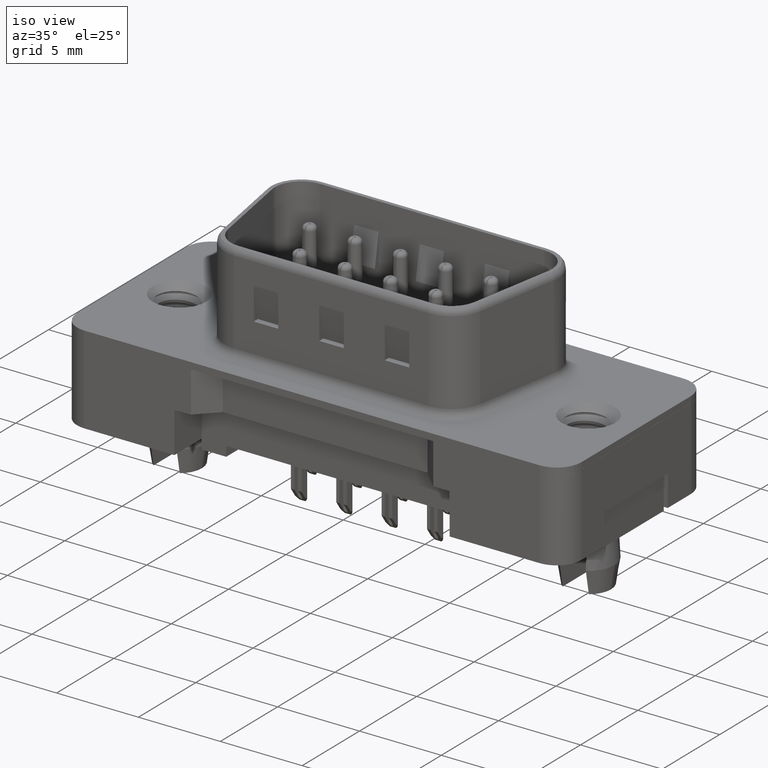
[diagram: clean part render]
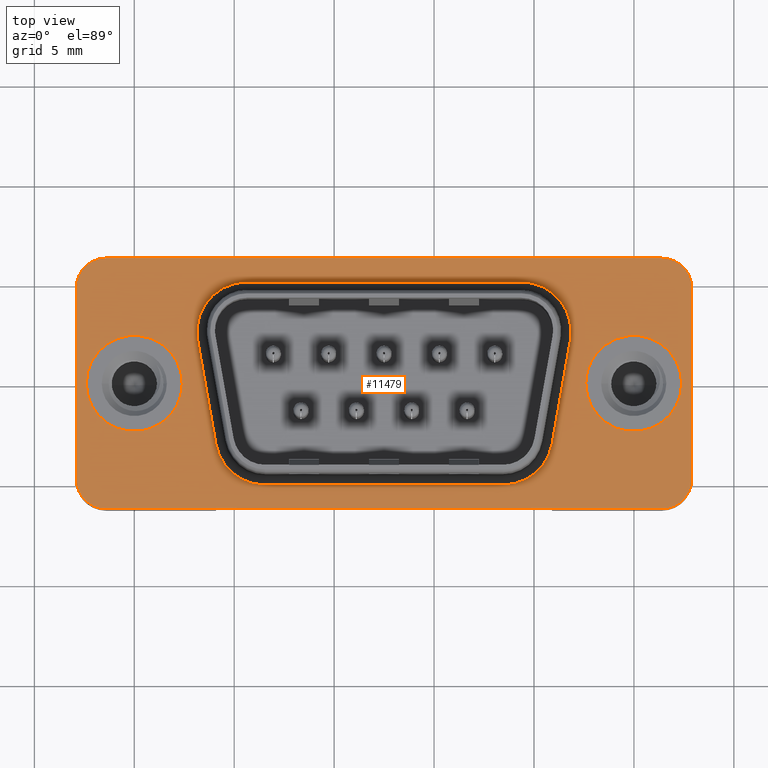
[diagram: tour spotlight — one face highlighted and labeled with its STEP entity id]
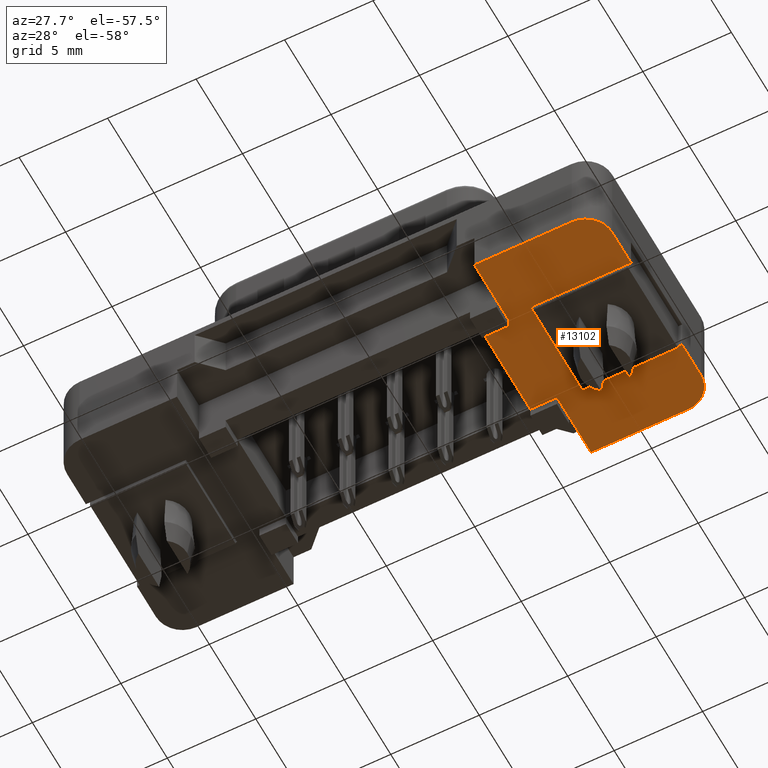
[diagram: tour spotlight — one face highlighted and labeled with its STEP entity id]
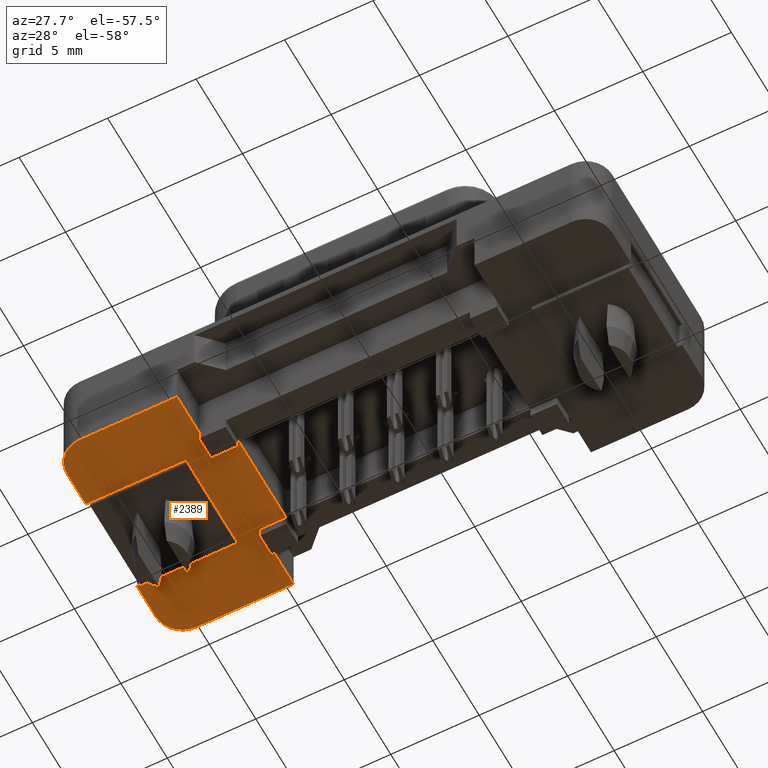
[diagram: tour spotlight — one face highlighted and labeled with its STEP entity id]
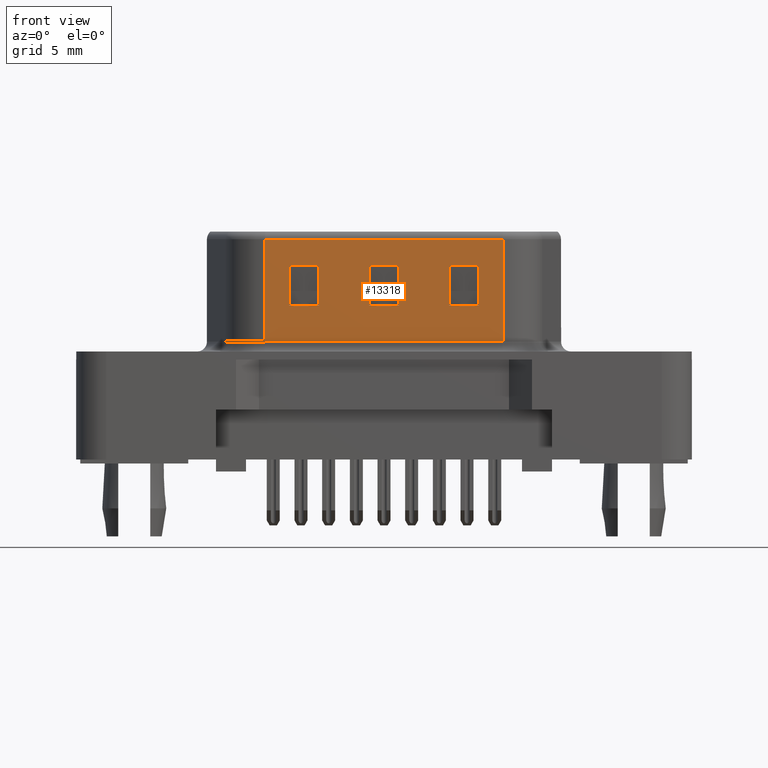
[diagram: tour spotlight — one face highlighted and labeled with its STEP entity id]
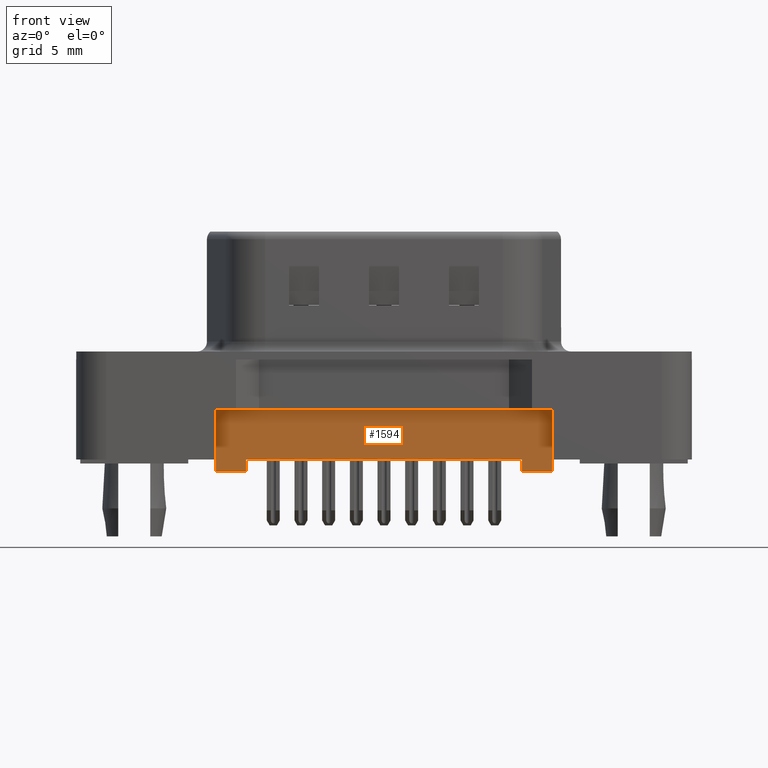
[diagram: tour spotlight — one face highlighted and labeled with its STEP entity id]
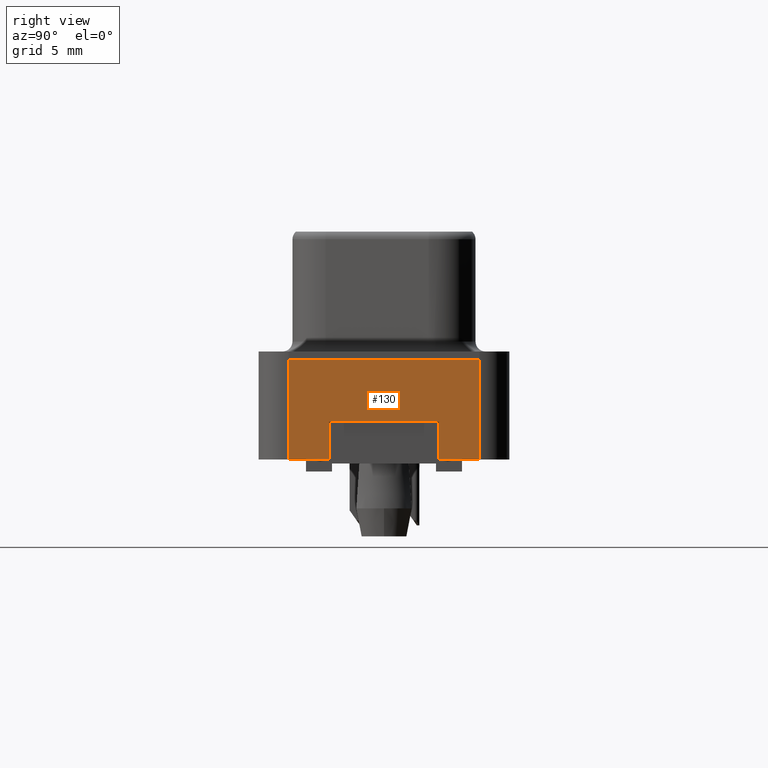
[diagram: tour spotlight — one face highlighted and labeled with its STEP entity id]
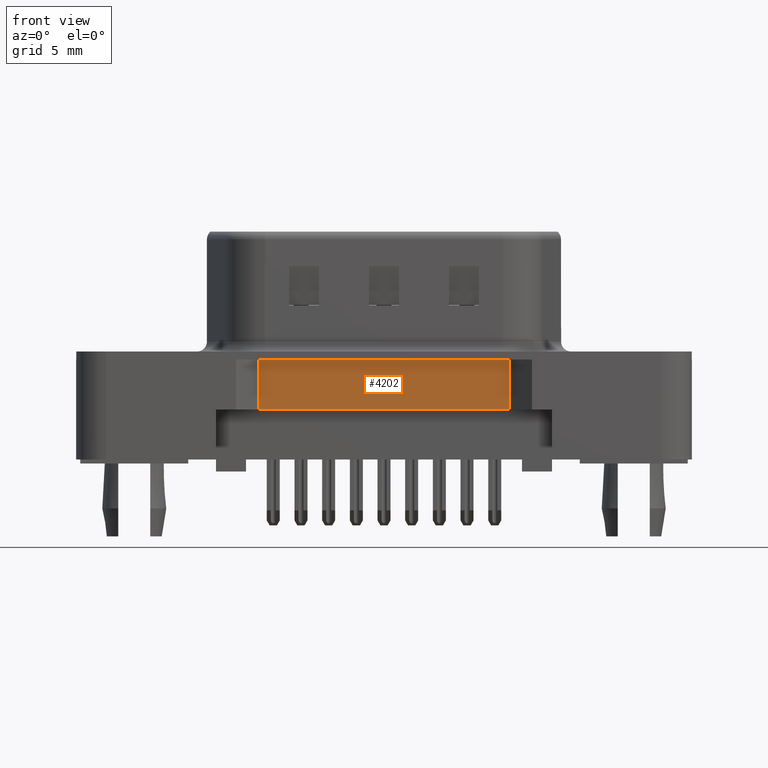
[diagram: tour spotlight — one face highlighted and labeled with its STEP entity id]
A machine part: a face-by-face anatomy tour. The part has 799 B-rep faces; the first image is the clean iso view, then the 7 largest visible faces are spotlighted one at a time (largest first), each with its STEP entity span.

Face 1 — top view, entity #11479. In plain terms, the highlighted planar face has unit normal (0, 0, 1).
Definition (entity closure, byte-faithful):
#20 = DIRECTION ( 'NONE',  ( -1.000000000000000000, -2.915426780200503014E-16, 0.0000000000000000000 ) ) ;
#46 = ORIENTED_EDGE ( 'NONE', *, *, #11451, .T. ) ;
#59 = DIRECTION ( 'NONE',  ( -1.000000000000000000, 0.0000000000000000000, 0.0000000000000000000 ) ) ;
#306 = EDGE_CURVE ( 'NONE', #723, #8824, #1138, .T. ) ;
#347 = DIRECTION ( 'NONE',  ( 0.0000000000000000000, 0.0000000000000000000, 1.000000000000000000 ) ) ;
#435 = ORIENTED_EDGE ( 'NONE', *, *, #7924, .T. ) ;
#706 = VERTEX_POINT ( 'NONE', #2000 ) ;
#723 = VERTEX_POINT ( 'NONE', #5502 ) ;
#757 = CARTESIAN_POINT ( 'NONE',  ( 26.39499999999999602, 5.080000000000002736, 0.4000000000000000222 ) ) ;
#768 = VERTEX_POINT ( 'NONE', #14994 ) ;
#825 = EDGE_CURVE ( 'NONE', #11800, #9748, #7929, .T. ) ;
#888 = VERTEX_POINT ( 'NONE', #3900 ) ;
#893 = EDGE_CURVE ( 'NONE', #9748, #723, #12275, .T. ) ;
#980 = VECTOR ( 'NONE', #12005, 999.9999999999998863 ) ;
#1103 = CARTESIAN_POINT ( 'NONE',  ( -2.904999999999999805, 4.775000000000000355, 0.4000000000000000222 ) ) ;
#1130 = AXIS2_PLACEMENT_3D ( 'NONE', #7141, #1363, #11477 ) ;
#1138 = LINE ( 'NONE', #5706, #4537 ) ;
#1140 = CARTESIAN_POINT ( 'NONE',  ( 27.89499999999999602, 4.775000000000003908, 0.4000000000000000222 ) ) ;
#1270 = VERTEX_POINT ( 'NONE', #1140 ) ;
#1363 = DIRECTION ( 'NONE',  ( 0.0000000000000000000, 0.0000000000000000000, 1.000000000000000000 ) ) ;
#1376 = VECTOR ( 'NONE', #13433, 1000.000000000000000 ) ;
#1497 = CARTESIAN_POINT ( 'NONE',  ( 27.38999999999999702, 4.590588526603852614E-15, 0.4000000000000000222 ) ) ;
#1698 = CIRCLE ( 'NONE', #2181, 2.400000000000000355 ) ;
#1720 = FACE_BOUND ( 'NONE', #4311, .T. ) ;
#1786 = FACE_BOUND ( 'NONE', #13286, .T. ) ;
#1795 = EDGE_CURVE ( 'NONE', #2996, #7900, #14494, .T. ) ;
#1856 = DIRECTION ( 'NONE',  ( 0.0000000000000000000, 0.0000000000000000000, 1.000000000000000000 ) ) ;
#1954 = VERTEX_POINT ( 'NONE', #3940 ) ;
#1985 = AXIS2_PLACEMENT_3D ( 'NONE', #2257, #12605, #12911 ) ;
#2000 = CARTESIAN_POINT ( 'NONE',  ( -1.404999999999996696, 6.275000000000003020, 0.4000000000000000222 ) ) ;
#2058 = EDGE_CURVE ( 'NONE', #9302, #1270, #8802, .T. ) ;
#2153 = VECTOR ( 'NONE', #11557, 1000.000000000000000 ) ;
#2181 = AXIS2_PLACEMENT_3D ( 'NONE', #3761, #347, #4981 ) ;
#2257 = CARTESIAN_POINT ( 'NONE',  ( 26.39499999999999602, 4.775000000000003908, 0.4000000000000000222 ) ) ;
#2477 = DIRECTION ( 'NONE',  ( 0.0000000000000000000, 0.0000000000000000000, 1.000000000000000000 ) ) ;
#2542 = ORIENTED_EDGE ( 'NONE', *, *, #13686, .T. ) ;
#2725 = DIRECTION ( 'NONE',  ( 0.0000000000000000000, 0.0000000000000000000, 1.000000000000000000 ) ) ;
#2799 = ORIENTED_EDGE ( 'NONE', *, *, #10694, .F. ) ;
#2800 = CARTESIAN_POINT ( 'NONE',  ( 22.40466846466400952, 5.478603111651539237, 0.4000000000000000222 ) ) ;
#2825 = AXIS2_PLACEMENT_3D ( 'NONE', #8113, #12741, #59 ) ;
#2996 = VERTEX_POINT ( 'NONE', #11625 ) ;
#2999 = FACE_BOUND ( 'NONE', #7333, .T. ) ;
#3024 = DIRECTION ( 'NONE',  ( 0.0000000000000000000, 0.0000000000000000000, 1.000000000000000000 ) ) ;
#3027 = DIRECTION ( 'NONE',  ( -0.0000000000000000000, -0.0000000000000000000, -1.000000000000000000 ) ) ;
#3068 = DIRECTION ( 'NONE',  ( -0.0000000000000000000, -1.000000000000000000, -0.0000000000000000000 ) ) ;
#3074 = EDGE_CURVE ( 'NONE', #706, #14712, #14242, .T. ) ;
#3093 = CIRCLE ( 'NONE', #11585, 2.399999999999999467 ) ;
#3313 = VECTOR ( 'NONE', #13956, 1000.000000000000000 ) ;
#3325 = CARTESIAN_POINT ( 'NONE',  ( 21.85499999999999687, 2.580000000000001403, 0.3999999999999998557 ) ) ;
#3448 = ORIENTED_EDGE ( 'NONE', *, *, #306, .T. ) ;
#3528 = EDGE_CURVE ( 'NONE', #1270, #8917, #8055, .T. ) ;
#3761 = CARTESIAN_POINT ( 'NONE',  ( 0.0000000000000000000, 0.0000000000000000000, 0.4000000000000000222 ) ) ;
#3813 = VERTEX_POINT ( 'NONE', #5453 ) ;
#3900 = CARTESIAN_POINT ( 'NONE',  ( 21.81701938253052120, 2.145879555832693963, 0.4000000000000000222 ) ) ;
#3940 = CARTESIAN_POINT ( 'NONE',  ( 19.35499999999999687, 5.080000000000000959, 0.4000000000000000222 ) ) ;
#3955 = EDGE_LOOP ( 'NONE', ( #5788, #10658, #8149, #435, #14190, #13522, #5968, #14632 ) ) ;
#4076 = CARTESIAN_POINT ( 'NONE',  ( 19.35499999999999687, 2.580000000000001403, 0.3999999999999999667 ) ) ;
#4093 = DIRECTION ( 'NONE',  ( -0.0000000000000000000, -0.0000000000000000000, -1.000000000000000000 ) ) ;
#4120 = CIRCLE ( 'NONE', #5346, 1.500000000000001332 ) ;
#4176 = CIRCLE ( 'NONE', #7571, 2.399999999999999467 ) ;
#4226 = CARTESIAN_POINT ( 'NONE',  ( 24.98999999999999844, 4.590588526603852614E-15, 0.4000000000000000222 ) ) ;
#4233 = CARTESIAN_POINT ( 'NONE',  ( 27.89500000000000313, -4.774999999999995026, 0.4000000000000000222 ) ) ;
#4279 = CARTESIAN_POINT ( 'NONE',  ( 6.544847220455646486, -5.080000000000000959, 0.4000000000000000222 ) ) ;
#4311 = EDGE_LOOP ( 'NONE', ( #2542, #46, #6728, #9690, #7887, #4662, #13003, #3448, #13852 ) ) ;
#4519 = AXIS2_PLACEMENT_3D ( 'NONE', #13452, #3027, #14831 ) ;
#4537 = VECTOR ( 'NONE', #10195, 999.9999999999998863 ) ;
#4580 = EDGE_CURVE ( 'NONE', #8026, #6505, #4176, .T. ) ;
#4662 = ORIENTED_EDGE ( 'NONE', *, *, #825, .T. ) ;
#4841 = CIRCLE ( 'NONE', #9938, 2.499999999999999556 ) ;
#4981 = DIRECTION ( 'NONE',  ( 1.000000000000000000, 0.0000000000000000000, 0.0000000000000000000 ) ) ;
#4993 = CARTESIAN_POINT ( 'NONE',  ( 26.39500000000000313, -6.274999999999995914, 0.4000000000000000222 ) ) ;
#5002 = AXIS2_PLACEMENT_3D ( 'NONE', #14163, #12016, #13009 ) ;
#5346 = AXIS2_PLACEMENT_3D ( 'NONE', #9319, #2477, #12737 ) ;
#5453 = CARTESIAN_POINT ( 'NONE',  ( 5.635000000000001563, 5.079999999999997407, 0.4000000000000000222 ) ) ;
#5501 = CARTESIAN_POINT ( 'NONE',  ( 26.39499999999999602, 6.275000000000004796, 0.4000000000000000222 ) ) ;
#5502 = CARTESIAN_POINT ( 'NONE',  ( 4.082827837925120384, -3.014120444167309287, 0.4000000000000000222 ) ) ;
#5519 = DIRECTION ( 'NONE',  ( 1.000000000000000000, 0.0000000000000000000, 0.0000000000000000000 ) ) ;
#5706 = CARTESIAN_POINT ( 'NONE',  ( 3.423604106411792802, 0.7245231194249338591, 0.4000000000000000222 ) ) ;
#5788 = ORIENTED_EDGE ( 'NONE', *, *, #3528, .T. ) ;
#5951 = AXIS2_PLACEMENT_3D ( 'NONE', #14593, #2725, #13221 ) ;
#5968 = ORIENTED_EDGE ( 'NONE', *, *, #13867, .T. ) ;
#6113 = EDGE_CURVE ( 'NONE', #8536, #11800, #6262, .T. ) ;
#6262 = CIRCLE ( 'NONE', #14261, 2.500000000000002220 ) ;
#6436 = CARTESIAN_POINT ( 'NONE',  ( 26.39499999999999602, 4.775000000000003908, 0.4000000000000000222 ) ) ;
#6505 = VERTEX_POINT ( 'NONE', #1497 ) ;
#6513 = DIRECTION ( 'NONE',  ( 1.000000000000000000, 0.0000000000000000000, -0.0000000000000000000 ) ) ;
#6728 = ORIENTED_EDGE ( 'NONE', *, *, #11223, .T. ) ;
#6949 = CIRCLE ( 'NONE', #4519, 2.499999999999998668 ) ;
#7046 = LINE ( 'NONE', #11672, #3313 ) ;
#7141 = CARTESIAN_POINT ( 'NONE',  ( -1.404999999999996474, 4.775000000000000355, 0.4000000000000000222 ) ) ;
#7199 = AXIS2_PLACEMENT_3D ( 'NONE', #6436, #1856, #6513 ) ;
#7333 = EDGE_LOOP ( 'NONE', ( #11789, #12344 ) ) ;
#7531 = LINE ( 'NONE', #2800, #980 ) ;
#7571 = AXIS2_PLACEMENT_3D ( 'NONE', #11174, #3024, #11393 ) ;
#7715 = EDGE_CURVE ( 'NONE', #7900, #9228, #7046, .T. ) ;
#7887 = ORIENTED_EDGE ( 'NONE', *, *, #6113, .T. ) ;
#7900 = VERTEX_POINT ( 'NONE', #8343 ) ;
#7924 = EDGE_CURVE ( 'NONE', #14712, #2996, #8795, .T. ) ;
#7929 = LINE ( 'NONE', #9217, #11294 ) ;
#8026 = VERTEX_POINT ( 'NONE', #14570 ) ;
#8055 = CIRCLE ( 'NONE', #1985, 1.500000000000001332 ) ;
#8113 = CARTESIAN_POINT ( 'NONE',  ( -1.404999999999996474, -4.774999999999998579, 0.4000000000000000222 ) ) ;
#8149 = ORIENTED_EDGE ( 'NONE', *, *, #3074, .T. ) ;
#8256 = CARTESIAN_POINT ( 'NONE',  ( -2.400000000000000355, 2.939152317953647599E-16, 0.4000000000000000222 ) ) ;
#8286 = FACE_OUTER_BOUND ( 'NONE', #3955, .T. ) ;
#8343 = CARTESIAN_POINT ( 'NONE',  ( -1.404999999999996252, -6.274999999999998579, 0.4000000000000000222 ) ) ;
#8439 = VECTOR ( 'NONE', #3068, 1000.000000000000000 ) ;
#8536 = VERTEX_POINT ( 'NONE', #9982 ) ;
#8795 = LINE ( 'NONE', #13357, #8439 ) ;
#8802 = LINE ( 'NONE', #4233, #1376 ) ;
#8824 = VERTEX_POINT ( 'NONE', #13998 ) ;
#8879 = DIRECTION ( 'NONE',  ( 1.000000000000000000, 2.528751422706716919E-16, -0.0000000000000000000 ) ) ;
#8917 = VERTEX_POINT ( 'NONE', #14449 ) ;
#9217 = CARTESIAN_POINT ( 'NONE',  ( 26.39499999999999957, -5.079999999999992966, 0.4000000000000000222 ) ) ;
#9228 = VERTEX_POINT ( 'NONE', #4993 ) ;
#9302 = VERTEX_POINT ( 'NONE', #10995 ) ;
#9319 = CARTESIAN_POINT ( 'NONE',  ( 26.39500000000000313, -4.774999999999995026, 0.4000000000000000222 ) ) ;
#9387 = CIRCLE ( 'NONE', #10610, 2.499999999999998668 ) ;
#9554 = VERTEX_POINT ( 'NONE', #8256 ) ;
#9690 = ORIENTED_EDGE ( 'NONE', *, *, #14485, .T. ) ;
#9744 = CARTESIAN_POINT ( 'NONE',  ( 5.635000000000001563, 2.579999999999997407, 0.3999999999999999667 ) ) ;
#9748 = VERTEX_POINT ( 'NONE', #4279 ) ;
#9898 = CARTESIAN_POINT ( 'NONE',  ( 18.44515277954435462, -5.079999999999995630, 0.4000000000000000222 ) ) ;
#9928 = VECTOR ( 'NONE', #8879, 1000.000000000000000 ) ;
#9933 = EDGE_CURVE ( 'NONE', #8917, #706, #11421, .T. ) ;
#9938 = AXIS2_PLACEMENT_3D ( 'NONE', #9744, #13238, #11106 ) ;
#9982 = CARTESIAN_POINT ( 'NONE',  ( 20.90717216207487894, -3.014120444167305291, 0.4000000000000000222 ) ) ;
#10195 = DIRECTION ( 'NONE',  ( -0.1736481776669233645, 0.9848077530122093526, -0.0000000000000000000 ) ) ;
#10299 = EDGE_CURVE ( 'NONE', #8824, #3813, #4841, .T. ) ;
#10610 = AXIS2_PLACEMENT_3D ( 'NONE', #4076, #12202, #13267 ) ;
#10658 = ORIENTED_EDGE ( 'NONE', *, *, #9933, .T. ) ;
#10694 = EDGE_CURVE ( 'NONE', #768, #9554, #12500, .T. ) ;
#10995 = CARTESIAN_POINT ( 'NONE',  ( 27.89500000000000313, -4.774999999999995026, 0.4000000000000000222 ) ) ;
#11080 = LINE ( 'NONE', #757, #9928 ) ;
#11106 = DIRECTION ( 'NONE',  ( 1.000000000000000000, 8.673617379884037444E-16, 0.0000000000000000000 ) ) ;
#11174 = CARTESIAN_POINT ( 'NONE',  ( 24.98999999999999844, 4.590588526603852614E-15, 0.4000000000000000222 ) ) ;
#11223 = EDGE_CURVE ( 'NONE', #11395, #888, #6949, .T. ) ;
#11294 = VECTOR ( 'NONE', #20, 1000.000000000000000 ) ;
#11393 = DIRECTION ( 'NONE',  ( 1.000000000000000000, 0.0000000000000000000, 0.0000000000000000000 ) ) ;
#11395 = VERTEX_POINT ( 'NONE', #3325 ) ;
#11421 = LINE ( 'NONE', #5501, #2153 ) ;
#11451 = EDGE_CURVE ( 'NONE', #1954, #11395, #9387, .T. ) ;
#11477 = DIRECTION ( 'NONE',  ( 1.000000000000000000, 0.0000000000000000000, 0.0000000000000000000 ) ) ;
#11479 = ADVANCED_FACE ( 'NONE', ( #1786, #2999, #1720, #8286 ), #14566, .T. ) ;
#11557 = DIRECTION ( 'NONE',  ( -1.000000000000000000, -1.248002500702739293E-16, 0.0000000000000000000 ) ) ;
#11585 = AXIS2_PLACEMENT_3D ( 'NONE', #4226, #12135, #5519 ) ;
#11625 = CARTESIAN_POINT ( 'NONE',  ( -2.904999999999998028, -4.774999999999998579, 0.4000000000000000222 ) ) ;
#11672 = CARTESIAN_POINT ( 'NONE',  ( 26.39500000000000313, -6.274999999999995914, 0.4000000000000000222 ) ) ;
#11789 = ORIENTED_EDGE ( 'NONE', *, *, #12772, .F. ) ;
#11800 = VERTEX_POINT ( 'NONE', #9898 ) ;
#12005 = DIRECTION ( 'NONE',  ( -0.1736481776669227262, -0.9848077530122094636, 0.0000000000000000000 ) ) ;
#12016 = DIRECTION ( 'NONE',  ( -0.0000000000000000000, -0.0000000000000000000, -1.000000000000000000 ) ) ;
#12135 = DIRECTION ( 'NONE',  ( 0.0000000000000000000, 0.0000000000000000000, 1.000000000000000000 ) ) ;
#12202 = DIRECTION ( 'NONE',  ( -0.0000000000000000000, -0.0000000000000000000, -1.000000000000000000 ) ) ;
#12275 = CIRCLE ( 'NONE', #5002, 2.500000000000000444 ) ;
#12344 = ORIENTED_EDGE ( 'NONE', *, *, #4580, .F. ) ;
#12500 = CIRCLE ( 'NONE', #5951, 2.400000000000000355 ) ;
#12605 = DIRECTION ( 'NONE',  ( 0.0000000000000000000, 0.0000000000000000000, 1.000000000000000000 ) ) ;
#12737 = DIRECTION ( 'NONE',  ( 1.000000000000000000, 0.0000000000000000000, 0.0000000000000000000 ) ) ;
#12741 = DIRECTION ( 'NONE',  ( 0.0000000000000000000, 0.0000000000000000000, 1.000000000000000000 ) ) ;
#12772 = EDGE_CURVE ( 'NONE', #6505, #8026, #3093, .T. ) ;
#12894 = ORIENTED_EDGE ( 'NONE', *, *, #14767, .F. ) ;
#12911 = DIRECTION ( 'NONE',  ( 1.000000000000000000, 0.0000000000000000000, 0.0000000000000000000 ) ) ;
#13003 = ORIENTED_EDGE ( 'NONE', *, *, #893, .T. ) ;
#13009 = DIRECTION ( 'NONE',  ( 1.000000000000000000, 0.0000000000000000000, 0.0000000000000000000 ) ) ;
#13221 = DIRECTION ( 'NONE',  ( 1.000000000000000000, 0.0000000000000000000, 0.0000000000000000000 ) ) ;
#13238 = DIRECTION ( 'NONE',  ( -0.0000000000000000000, -0.0000000000000000000, -1.000000000000000000 ) ) ;
#13267 = DIRECTION ( 'NONE',  ( 1.000000000000000000, 0.0000000000000000000, 0.0000000000000000000 ) ) ;
#13286 = EDGE_LOOP ( 'NONE', ( #2799, #12894 ) ) ;
#13357 = CARTESIAN_POINT ( 'NONE',  ( -2.904999999999999805, -4.774999999999998579, 0.4000000000000000222 ) ) ;
#13371 = DIRECTION ( 'NONE',  ( 1.000000000000000000, 0.0000000000000000000, 0.0000000000000000000 ) ) ;
#13433 = DIRECTION ( 'NONE',  ( -7.265857491002333524E-16, 1.000000000000000000, 0.0000000000000000000 ) ) ;
#13452 = CARTESIAN_POINT ( 'NONE',  ( 19.35499999999999687, 2.580000000000001403, 0.3999999999999999667 ) ) ;
#13522 = ORIENTED_EDGE ( 'NONE', *, *, #7715, .T. ) ;
#13686 = EDGE_CURVE ( 'NONE', #3813, #1954, #11080, .T. ) ;
#13852 = ORIENTED_EDGE ( 'NONE', *, *, #10299, .T. ) ;
#13867 = EDGE_CURVE ( 'NONE', #9228, #9302, #4120, .T. ) ;
#13956 = DIRECTION ( 'NONE',  ( 1.000000000000000000, 9.360018755270542231E-17, -0.0000000000000000000 ) ) ;
#13998 = CARTESIAN_POINT ( 'NONE',  ( 3.172980617469478570, 2.145879555832689523, 0.4000000000000000222 ) ) ;
#14163 = CARTESIAN_POINT ( 'NONE',  ( 6.544847220455644710, -2.580000000000000515, 0.3999999999999999667 ) ) ;
#14190 = ORIENTED_EDGE ( 'NONE', *, *, #1795, .T. ) ;
#14242 = CIRCLE ( 'NONE', #1130, 1.500000000000001776 ) ;
#14261 = AXIS2_PLACEMENT_3D ( 'NONE', #14506, #4093, #13371 ) ;
#14449 = CARTESIAN_POINT ( 'NONE',  ( 26.39499999999999602, 6.275000000000004796, 0.4000000000000000222 ) ) ;
#14485 = EDGE_CURVE ( 'NONE', #888, #8536, #7531, .T. ) ;
#14494 = CIRCLE ( 'NONE', #2825, 1.500000000000001332 ) ;
#14506 = CARTESIAN_POINT ( 'NONE',  ( 18.44515277954435462, -2.579999999999997407, 0.3999999999999999667 ) ) ;
#14566 = PLANE ( 'NONE',  #7199 ) ;
#14570 = CARTESIAN_POINT ( 'NONE',  ( 22.58999999999999986, 4.884503758399217916E-15, 0.4000000000000000222 ) ) ;
#14593 = CARTESIAN_POINT ( 'NONE',  ( 0.0000000000000000000, 0.0000000000000000000, 0.4000000000000000222 ) ) ;
#14632 = ORIENTED_EDGE ( 'NONE', *, *, #2058, .T. ) ;
#14712 = VERTEX_POINT ( 'NONE', #1103 ) ;
#14767 = EDGE_CURVE ( 'NONE', #9554, #768, #1698, .T. ) ;
#14831 = DIRECTION ( 'NONE',  ( 1.000000000000000000, 0.0000000000000000000, 0.0000000000000000000 ) ) ;
#14994 = CARTESIAN_POINT ( 'NONE',  ( 2.400000000000000355, 0.0000000000000000000, 0.4000000000000000222 ) ) ;

Face 2 — auxiliary view, entity #13102. In plain terms, the highlighted planar face has unit normal (0, 0, 1).
Definition (entity closure, byte-faithful):
#2 = DIRECTION ( 'NONE',  ( -1.000000000000000000, 0.0000000000000000000, 0.0000000000000000000 ) ) ;
#66 = CARTESIAN_POINT ( 'NONE',  ( 20.90000000000000568, -3.899999999999998579, -5.000000000000000000 ) ) ;
#238 = EDGE_CURVE ( 'NONE', #4566, #9888, #5277, .T. ) ;
#251 = LINE ( 'NONE', #13922, #5540 ) ;
#386 = DIRECTION ( 'NONE',  ( 1.000000000000000000, 0.0000000000000000000, -0.0000000000000000000 ) ) ;
#496 = VERTEX_POINT ( 'NONE', #3537 ) ;
#536 = DIRECTION ( 'NONE',  ( 1.000000000000000000, 0.0000000000000000000, 0.0000000000000000000 ) ) ;
#579 = EDGE_CURVE ( 'NONE', #9888, #11301, #10468, .T. ) ;
#603 = DIRECTION ( 'NONE',  ( 0.0000000000000000000, 0.0000000000000000000, 1.000000000000000000 ) ) ;
#626 = DIRECTION ( 'NONE',  ( -0.0000000000000000000, -1.000000000000000000, -0.0000000000000000000 ) ) ;
#752 = DIRECTION ( 'NONE',  ( -0.0000000000000000000, -1.000000000000000000, -0.0000000000000000000 ) ) ;
#1048 = EDGE_CURVE ( 'NONE', #7633, #1528, #7153, .T. ) ;
#1178 = ORIENTED_EDGE ( 'NONE', *, *, #1606, .F. ) ;
#1306 = EDGE_CURVE ( 'NONE', #11859, #10993, #13844, .T. ) ;
#1453 = ORIENTED_EDGE ( 'NONE', *, *, #7201, .F. ) ;
#1528 = VERTEX_POINT ( 'NONE', #2790 ) ;
#1606 = EDGE_CURVE ( 'NONE', #11865, #4566, #3020, .T. ) ;
#1716 = ORIENTED_EDGE ( 'NONE', *, *, #2209, .F. ) ;
#1759 = CARTESIAN_POINT ( 'NONE',  ( 26.40000000000000213, -4.774999999999996803, -5.000000000000000000 ) ) ;
#1790 = VERTEX_POINT ( 'NONE', #8047 ) ;
#1820 = DIRECTION ( 'NONE',  ( 0.0000000000000000000, 0.0000000000000000000, 1.000000000000000000 ) ) ;
#1857 = EDGE_CURVE ( 'NONE', #7399, #496, #9322, .T. ) ;
#2098 = VECTOR ( 'NONE', #4851, 1000.000000000000000 ) ;
#2165 = ORIENTED_EDGE ( 'NONE', *, *, #3763, .F. ) ;
#2206 = CARTESIAN_POINT ( 'NONE',  ( 20.90000000000000924, 2.600000000000000977, -5.000000000000000000 ) ) ;
#2209 = EDGE_CURVE ( 'NONE', #2727, #11859, #8951, .T. ) ;
#2355 = PLANE ( 'NONE',  #14537 ) ;
#2713 = EDGE_CURVE ( 'NONE', #10993, #7633, #2745, .T. ) ;
#2727 = VERTEX_POINT ( 'NONE', #8689 ) ;
#2745 = LINE ( 'NONE', #8546, #3538 ) ;
#2785 = CARTESIAN_POINT ( 'NONE',  ( 27.90000000000000568, 2.750000000000003109, -5.000000000000000000 ) ) ;
#2790 = CARTESIAN_POINT ( 'NONE',  ( 20.90000000000000568, -2.600000000000004974, -5.000000000000000000 ) ) ;
#2953 = CARTESIAN_POINT ( 'NONE',  ( 26.40000000000000213, 4.775000000000002132, -5.000000000000000000 ) ) ;
#3020 = LINE ( 'NONE', #5398, #5513 ) ;
#3088 = VECTOR ( 'NONE', #8030, 1000.000000000000000 ) ;
#3407 = CARTESIAN_POINT ( 'NONE',  ( 22.24000000000000199, -2.749999999999995115, -5.000000000000000000 ) ) ;
#3537 = CARTESIAN_POINT ( 'NONE',  ( 27.90000000000000568, 4.775000000000002132, -5.000000000000000000 ) ) ;
#3538 = VECTOR ( 'NONE', #626, 1000.000000000000000 ) ;
#3704 = DIRECTION ( 'NONE',  ( 0.0000000000000000000, 1.000000000000000000, 0.0000000000000000000 ) ) ;
#3763 = EDGE_CURVE ( 'NONE', #11376, #11865, #11225, .T. ) ;
#3805 = LINE ( 'NONE', #7230, #8441 ) ;
#3859 = ORIENTED_EDGE ( 'NONE', *, *, #1048, .F. ) ;
#4332 = VECTOR ( 'NONE', #3704, 1000.000000000000000 ) ;
#4338 = VERTEX_POINT ( 'NONE', #9578 ) ;
#4407 = ORIENTED_EDGE ( 'NONE', *, *, #579, .F. ) ;
#4450 = FACE_OUTER_BOUND ( 'NONE', #12355, .T. ) ;
#4566 = VERTEX_POINT ( 'NONE', #12160 ) ;
#4851 = DIRECTION ( 'NONE',  ( 0.0000000000000000000, 1.000000000000000000, 0.0000000000000000000 ) ) ;
#4888 = DIRECTION ( 'NONE',  ( 0.0000000000000000000, -1.000000000000000000, 0.0000000000000000000 ) ) ;
#5073 = EDGE_CURVE ( 'NONE', #1528, #11376, #12215, .T. ) ;
#5277 = CIRCLE ( 'NONE', #9151, 1.500000000000001332 ) ;
#5398 = CARTESIAN_POINT ( 'NONE',  ( 26.40000000000000568, -6.274999999999995914, -5.000000000000000000 ) ) ;
#5513 = VECTOR ( 'NONE', #8593, 1000.000000000000000 ) ;
#5540 = VECTOR ( 'NONE', #4888, 1000.000000000000000 ) ;
#5890 = ORIENTED_EDGE ( 'NONE', *, *, #12455, .F. ) ;
#5984 = VERTEX_POINT ( 'NONE', #8357 ) ;
#6052 = ORIENTED_EDGE ( 'NONE', *, *, #7629, .F. ) ;
#6776 = DIRECTION ( 'NONE',  ( -1.000000000000000000, -7.885106708985490266E-17, -0.0000000000000000000 ) ) ;
#7007 = CARTESIAN_POINT ( 'NONE',  ( 26.40000000000000213, 4.775000000000002132, -5.000000000000000000 ) ) ;
#7101 = ORIENTED_EDGE ( 'NONE', *, *, #1306, .F. ) ;
#7153 = LINE ( 'NONE', #11253, #10337 ) ;
#7201 = EDGE_CURVE ( 'NONE', #11301, #5984, #14903, .T. ) ;
#7230 = CARTESIAN_POINT ( 'NONE',  ( 22.24000000000000199, -2.749999999999995115, -5.000000000000000000 ) ) ;
#7399 = VERTEX_POINT ( 'NONE', #2785 ) ;
#7481 = VECTOR ( 'NONE', #11230, 1000.000000000000000 ) ;
#7613 = DIRECTION ( 'NONE',  ( 1.000000000000000000, -0.0000000000000000000, -0.0000000000000000000 ) ) ;
#7622 = CARTESIAN_POINT ( 'NONE',  ( 20.90000000000000924, 2.600000000000000977, -5.000000000000000000 ) ) ;
#7629 = EDGE_CURVE ( 'NONE', #1790, #4338, #10465, .T. ) ;
#7633 = VERTEX_POINT ( 'NONE', #13667 ) ;
#8030 = DIRECTION ( 'NONE',  ( 0.0000000000000000000, -1.000000000000000000, 0.0000000000000000000 ) ) ;
#8047 = CARTESIAN_POINT ( 'NONE',  ( 26.40000000000000568, 6.275000000000003908, -5.000000000000000000 ) ) ;
#8054 = CARTESIAN_POINT ( 'NONE',  ( 27.90000000000000568, -2.749999999999994671, -5.000000000000000000 ) ) ;
#8112 = CARTESIAN_POINT ( 'NONE',  ( 19.40000000000000568, 2.600000000000000977, -5.000000000000000000 ) ) ;
#8153 = VERTEX_POINT ( 'NONE', #10366 ) ;
#8357 = CARTESIAN_POINT ( 'NONE',  ( 22.24000000000000199, -2.749999999999995115, -5.000000000000000000 ) ) ;
#8441 = VECTOR ( 'NONE', #11019, 1000.000000000000000 ) ;
#8546 = CARTESIAN_POINT ( 'NONE',  ( 19.40000000000000568, -2.600000000000004974, -5.000000000000000000 ) ) ;
#8593 = DIRECTION ( 'NONE',  ( 1.000000000000000000, 2.668805347656631116E-16, -0.0000000000000000000 ) ) ;
#8672 = VECTOR ( 'NONE', #12595, 1000.000000000000000 ) ;
#8689 = CARTESIAN_POINT ( 'NONE',  ( 20.90000000000000924, 3.900000000000001243, -5.000000000000000000 ) ) ;
#8731 = ORIENTED_EDGE ( 'NONE', *, *, #2713, .F. ) ;
#8761 = EDGE_CURVE ( 'NONE', #4338, #2727, #251, .T. ) ;
#8876 = LINE ( 'NONE', #12218, #7481 ) ;
#8951 = LINE ( 'NONE', #14937, #3088 ) ;
#9151 = AXIS2_PLACEMENT_3D ( 'NONE', #1759, #11025, #12397 ) ;
#9322 = LINE ( 'NONE', #11911, #2098 ) ;
#9342 = AXIS2_PLACEMENT_3D ( 'NONE', #2953, #603, #536 ) ;
#9578 = CARTESIAN_POINT ( 'NONE',  ( 20.90000000000000568, 6.275000000000000355, -5.000000000000000000 ) ) ;
#9888 = VERTEX_POINT ( 'NONE', #13925 ) ;
#10006 = VECTOR ( 'NONE', #12435, 1000.000000000000000 ) ;
#10010 = CARTESIAN_POINT ( 'NONE',  ( 20.90000000000000568, -6.274999999999997691, -5.000000000000000000 ) ) ;
#10211 = ORIENTED_EDGE ( 'NONE', *, *, #5073, .F. ) ;
#10337 = VECTOR ( 'NONE', #7613, 1000.000000000000000 ) ;
#10366 = CARTESIAN_POINT ( 'NONE',  ( 22.24000000000000199, 2.750000000000003553, -5.000000000000000000 ) ) ;
#10385 = CARTESIAN_POINT ( 'NONE',  ( 26.40000000000000568, 6.275000000000003908, -5.000000000000000000 ) ) ;
#10465 = LINE ( 'NONE', #10385, #8672 ) ;
#10468 = LINE ( 'NONE', #10701, #4332 ) ;
#10572 = VECTOR ( 'NONE', #752, 1000.000000000000000 ) ;
#10701 = CARTESIAN_POINT ( 'NONE',  ( 27.90000000000000568, -4.774999999999995914, -5.000000000000000000 ) ) ;
#10708 = EDGE_CURVE ( 'NONE', #496, #1790, #11765, .T. ) ;
#10960 = ORIENTED_EDGE ( 'NONE', *, *, #10708, .F. ) ;
#10993 = VERTEX_POINT ( 'NONE', #8112 ) ;
#11019 = DIRECTION ( 'NONE',  ( 0.0000000000000000000, 1.000000000000000000, 0.0000000000000000000 ) ) ;
#11025 = DIRECTION ( 'NONE',  ( 0.0000000000000000000, 0.0000000000000000000, 1.000000000000000000 ) ) ;
#11120 = ORIENTED_EDGE ( 'NONE', *, *, #238, .F. ) ;
#11225 = LINE ( 'NONE', #10010, #10006 ) ;
#11230 = DIRECTION ( 'NONE',  ( 1.000000000000000000, -7.885106708985490266E-17, 0.0000000000000000000 ) ) ;
#11253 = CARTESIAN_POINT ( 'NONE',  ( 20.90000000000000568, -2.600000000000004974, -5.000000000000000000 ) ) ;
#11301 = VERTEX_POINT ( 'NONE', #8054 ) ;
#11376 = VERTEX_POINT ( 'NONE', #66 ) ;
#11765 = CIRCLE ( 'NONE', #9342, 1.500000000000001332 ) ;
#11859 = VERTEX_POINT ( 'NONE', #7622 ) ;
#11865 = VERTEX_POINT ( 'NONE', #12185 ) ;
#11911 = CARTESIAN_POINT ( 'NONE',  ( 27.90000000000000568, -4.774999999999995914, -5.000000000000000000 ) ) ;
#12160 = CARTESIAN_POINT ( 'NONE',  ( 26.40000000000000568, -6.274999999999997691, -5.000000000000000000 ) ) ;
#12185 = CARTESIAN_POINT ( 'NONE',  ( 20.90000000000000568, -6.274999999999997691, -5.000000000000000000 ) ) ;
#12215 = LINE ( 'NONE', #13594, #10572 ) ;
#12218 = CARTESIAN_POINT ( 'NONE',  ( 22.24000000000000199, 2.750000000000003553, -5.000000000000000000 ) ) ;
#12259 = EDGE_CURVE ( 'NONE', #5984, #8153, #3805, .T. ) ;
#12355 = EDGE_LOOP ( 'NONE', ( #13777, #5890, #15036, #1453, #4407, #11120, #1178, #2165, #10211, #3859, #8731, #7101, #1716, #14318, #6052, #10960 ) ) ;
#12397 = DIRECTION ( 'NONE',  ( 1.000000000000000000, 0.0000000000000000000, 0.0000000000000000000 ) ) ;
#12435 = DIRECTION ( 'NONE',  ( -0.0000000000000000000, -1.000000000000000000, -0.0000000000000000000 ) ) ;
#12455 = EDGE_CURVE ( 'NONE', #8153, #7399, #8876, .T. ) ;
#12595 = DIRECTION ( 'NONE',  ( -1.000000000000000000, -1.334402673828304958E-16, 0.0000000000000000000 ) ) ;
#13102 = ADVANCED_FACE ( 'NONE', ( #4450 ), #2355, .F. ) ;
#13594 = CARTESIAN_POINT ( 'NONE',  ( 20.90000000000000568, -3.899999999999998579, -5.000000000000000000 ) ) ;
#13667 = CARTESIAN_POINT ( 'NONE',  ( 19.40000000000000568, -2.600000000000004974, -5.000000000000000000 ) ) ;
#13777 = ORIENTED_EDGE ( 'NONE', *, *, #1857, .F. ) ;
#13844 = LINE ( 'NONE', #2206, #14617 ) ;
#13922 = CARTESIAN_POINT ( 'NONE',  ( 20.90000000000000568, 6.275000000000000355, -5.000000000000000000 ) ) ;
#13925 = CARTESIAN_POINT ( 'NONE',  ( 27.90000000000000568, -4.774999999999995914, -5.000000000000000000 ) ) ;
#14285 = VECTOR ( 'NONE', #6776, 1000.000000000000000 ) ;
#14318 = ORIENTED_EDGE ( 'NONE', *, *, #8761, .F. ) ;
#14537 = AXIS2_PLACEMENT_3D ( 'NONE', #7007, #1820, #386 ) ;
#14617 = VECTOR ( 'NONE', #2, 1000.000000000000000 ) ;
#14903 = LINE ( 'NONE', #3407, #14285 ) ;
#14937 = CARTESIAN_POINT ( 'NONE',  ( 20.90000000000000924, 3.900000000000001243, -5.000000000000000000 ) ) ;
#15036 = ORIENTED_EDGE ( 'NONE', *, *, #12259, .F. ) ;

Face 3 — auxiliary view, entity #2389. In plain terms, the highlighted planar face has unit normal (0, 0, 1).
Definition (entity closure, byte-faithful):
#50 = EDGE_CURVE ( 'NONE', #10593, #14584, #10661, .T. ) ;
#233 = CARTESIAN_POINT ( 'NONE',  ( 2.750000000000000444, -2.750000000000000444, -5.000000000000000000 ) ) ;
#311 = EDGE_CURVE ( 'NONE', #4627, #11000, #11405, .T. ) ;
#480 = CARTESIAN_POINT ( 'NONE',  ( 4.089999999999992752, 6.275000000000003908, -5.000000000000000000 ) ) ;
#656 = CARTESIAN_POINT ( 'NONE',  ( 4.089999999999992752, -3.899999999999995470, -5.000000000000000000 ) ) ;
#779 = EDGE_CURVE ( 'NONE', #7148, #13007, #1021, .T. ) ;
#838 = DIRECTION ( 'NONE',  ( -1.000000000000000000, 2.891205793294675861E-16, -0.0000000000000000000 ) ) ;
#867 = VECTOR ( 'NONE', #9674, 1000.000000000000000 ) ;
#950 = EDGE_CURVE ( 'NONE', #12603, #5448, #6257, .T. ) ;
#970 = EDGE_CURVE ( 'NONE', #14584, #5811, #14227, .T. ) ;
#1021 = LINE ( 'NONE', #6930, #5327 ) ;
#1051 = EDGE_CURVE ( 'NONE', #5448, #10219, #3120, .T. ) ;
#1192 = CARTESIAN_POINT ( 'NONE',  ( 4.089999999999992752, 3.900000000000004352, -5.000000000000000000 ) ) ;
#1294 = VERTEX_POINT ( 'NONE', #10413 ) ;
#1301 = DIRECTION ( 'NONE',  ( -1.000000000000000000, 0.0000000000000000000, 0.0000000000000000000 ) ) ;
#1406 = AXIS2_PLACEMENT_3D ( 'NONE', #11024, #3032, #13169 ) ;
#1705 = CARTESIAN_POINT ( 'NONE',  ( 4.089999999999992752, 2.600000000000001421, -5.000000000000000000 ) ) ;
#1882 = EDGE_CURVE ( 'NONE', #2714, #14133, #2549, .T. ) ;
#1895 = CIRCLE ( 'NONE', #1406, 1.500000000000000000 ) ;
#1976 = LINE ( 'NONE', #1705, #2845 ) ;
#2011 = LINE ( 'NONE', #13492, #11370 ) ;
#2034 = CARTESIAN_POINT ( 'NONE',  ( -1.409999999999992149, -6.275000000000000355, -5.000000000000000000 ) ) ;
#2055 = ORIENTED_EDGE ( 'NONE', *, *, #950, .F. ) ;
#2088 = EDGE_CURVE ( 'NONE', #10219, #2714, #10371, .T. ) ;
#2091 = ORIENTED_EDGE ( 'NONE', *, *, #2088, .F. ) ;
#2296 = ORIENTED_EDGE ( 'NONE', *, *, #4760, .F. ) ;
#2384 = DIRECTION ( 'NONE',  ( 0.0000000000000000000, 0.0000000000000000000, 1.000000000000000000 ) ) ;
#2389 = ADVANCED_FACE ( 'NONE', ( #8333 ), #9240, .F. ) ;
#2529 = VERTEX_POINT ( 'NONE', #12935 ) ;
#2549 = LINE ( 'NONE', #3775, #3076 ) ;
#2714 = VERTEX_POINT ( 'NONE', #14312 ) ;
#2845 = VECTOR ( 'NONE', #838, 1000.000000000000000 ) ;
#3032 = DIRECTION ( 'NONE',  ( 0.0000000000000000000, 0.0000000000000000000, 1.000000000000000000 ) ) ;
#3076 = VECTOR ( 'NONE', #10775, 1000.000000000000000 ) ;
#3089 = CARTESIAN_POINT ( 'NONE',  ( 2.750000000000000444, -2.750000000000000444, -5.000000000000000000 ) ) ;
#3120 = LINE ( 'NONE', #6340, #8130 ) ;
#3227 = ORIENTED_EDGE ( 'NONE', *, *, #779, .F. ) ;
#3295 = DIRECTION ( 'NONE',  ( 1.000000000000000000, 0.0000000000000000000, 0.0000000000000000000 ) ) ;
#3518 = VECTOR ( 'NONE', #11712, 1000.000000000000000 ) ;
#3735 = CARTESIAN_POINT ( 'NONE',  ( 2.750000000000000444, 2.750000000000001332, -5.000000000000000000 ) ) ;
#3775 = CARTESIAN_POINT ( 'NONE',  ( -2.909999999999992593, -4.775000000000000355, -5.000000000000000000 ) ) ;
#4253 = ORIENTED_EDGE ( 'NONE', *, *, #1882, .F. ) ;
#4548 = LINE ( 'NONE', #5848, #11776 ) ;
#4604 = DIRECTION ( 'NONE',  ( 0.0000000000000000000, 0.0000000000000000000, 1.000000000000000000 ) ) ;
#4627 = VERTEX_POINT ( 'NONE', #2034 ) ;
#4760 = EDGE_CURVE ( 'NONE', #2529, #12603, #4548, .T. ) ;
#4973 = ORIENTED_EDGE ( 'NONE', *, *, #13799, .F. ) ;
#5319 = LINE ( 'NONE', #3089, #6024 ) ;
#5327 = VECTOR ( 'NONE', #12637, 1000.000000000000000 ) ;
#5448 = VERTEX_POINT ( 'NONE', #13351 ) ;
#5455 = ORIENTED_EDGE ( 'NONE', *, *, #8937, .F. ) ;
#5527 = VECTOR ( 'NONE', #10409, 1000.000000000000000 ) ;
#5811 = VERTEX_POINT ( 'NONE', #13832 ) ;
#5848 = CARTESIAN_POINT ( 'NONE',  ( 4.089999999999992752, 3.900000000000004352, -5.000000000000000000 ) ) ;
#6024 = VECTOR ( 'NONE', #9856, 1000.000000000000000 ) ;
#6105 = DIRECTION ( 'NONE',  ( 0.0000000000000000000, 1.000000000000000000, 0.0000000000000000000 ) ) ;
#6257 = LINE ( 'NONE', #480, #3518 ) ;
#6312 = VECTOR ( 'NONE', #14044, 1000.000000000000000 ) ;
#6340 = CARTESIAN_POINT ( 'NONE',  ( 5.090000000000007851, 6.275000000000000355, -5.000000000000000000 ) ) ;
#6930 = CARTESIAN_POINT ( 'NONE',  ( 4.089999999999992752, -2.600000000000002753, -5.000000000000000000 ) ) ;
#7068 = EDGE_CURVE ( 'NONE', #1294, #2529, #1976, .T. ) ;
#7148 = VERTEX_POINT ( 'NONE', #12114 ) ;
#7176 = DIRECTION ( 'NONE',  ( 1.000000000000000000, 0.0000000000000000000, -0.0000000000000000000 ) ) ;
#7704 = AXIS2_PLACEMENT_3D ( 'NONE', #12960, #2384, #7176 ) ;
#7872 = CARTESIAN_POINT ( 'NONE',  ( -1.409999999999992371, 4.775000000000000355, -5.000000000000000000 ) ) ;
#7969 = CARTESIAN_POINT ( 'NONE',  ( 5.589999999999994529, -2.600000000000003197, -5.000000000000000000 ) ) ;
#8013 = VERTEX_POINT ( 'NONE', #656 ) ;
#8130 = VECTOR ( 'NONE', #12174, 1000.000000000000000 ) ;
#8273 = LINE ( 'NONE', #7969, #6312 ) ;
#8333 = FACE_OUTER_BOUND ( 'NONE', #12248, .T. ) ;
#8743 = DIRECTION ( 'NONE',  ( 1.000000000000000000, -0.0000000000000000000, -0.0000000000000000000 ) ) ;
#8864 = CARTESIAN_POINT ( 'NONE',  ( -2.909999999999992593, 2.750000000000001332, -5.000000000000000000 ) ) ;
#8937 = EDGE_CURVE ( 'NONE', #5811, #4627, #1895, .T. ) ;
#9240 = PLANE ( 'NONE',  #7704 ) ;
#9348 = CARTESIAN_POINT ( 'NONE',  ( 4.089999999999992752, -6.274999999999994138, -5.000000000000000000 ) ) ;
#9525 = CARTESIAN_POINT ( 'NONE',  ( 2.750000000000000444, -2.750000000000000444, -5.000000000000000000 ) ) ;
#9528 = CARTESIAN_POINT ( 'NONE',  ( -2.909999999999992593, -4.775000000000000355, -5.000000000000000000 ) ) ;
#9674 = DIRECTION ( 'NONE',  ( -0.0000000000000000000, -1.000000000000000000, -0.0000000000000000000 ) ) ;
#9856 = DIRECTION ( 'NONE',  ( -0.0000000000000000000, -1.000000000000000000, -0.0000000000000000000 ) ) ;
#10147 = DIRECTION ( 'NONE',  ( 0.0000000000000000000, 1.000000000000000000, 0.0000000000000000000 ) ) ;
#10208 = ORIENTED_EDGE ( 'NONE', *, *, #970, .F. ) ;
#10219 = VERTEX_POINT ( 'NONE', #13397 ) ;
#10371 = CIRCLE ( 'NONE', #12551, 1.500000000000000222 ) ;
#10392 = CARTESIAN_POINT ( 'NONE',  ( 4.089999999999996305, -6.274999999999998579, -5.000000000000000000 ) ) ;
#10409 = DIRECTION ( 'NONE',  ( 1.000000000000000000, 2.668805347656626678E-16, -0.0000000000000000000 ) ) ;
#10413 = CARTESIAN_POINT ( 'NONE',  ( 5.589999999999994529, 2.600000000000000977, -5.000000000000000000 ) ) ;
#10516 = ORIENTED_EDGE ( 'NONE', *, *, #13031, .F. ) ;
#10593 = VERTEX_POINT ( 'NONE', #233 ) ;
#10661 = LINE ( 'NONE', #9525, #13514 ) ;
#10682 = DIRECTION ( 'NONE',  ( -0.0000000000000000000, 1.000000000000000000, -0.0000000000000000000 ) ) ;
#10732 = EDGE_CURVE ( 'NONE', #14133, #12972, #13379, .T. ) ;
#10775 = DIRECTION ( 'NONE',  ( -0.0000000000000000000, -1.000000000000000000, -0.0000000000000000000 ) ) ;
#11000 = VERTEX_POINT ( 'NONE', #10392 ) ;
#11024 = CARTESIAN_POINT ( 'NONE',  ( -1.409999999999992371, -4.775000000000000355, -5.000000000000000000 ) ) ;
#11370 = VECTOR ( 'NONE', #10147, 1000.000000000000000 ) ;
#11405 = LINE ( 'NONE', #12688, #5527 ) ;
#11465 = ORIENTED_EDGE ( 'NONE', *, *, #7068, .F. ) ;
#11594 = ORIENTED_EDGE ( 'NONE', *, *, #311, .F. ) ;
#11632 = LINE ( 'NONE', #9348, #13805 ) ;
#11712 = DIRECTION ( 'NONE',  ( -0.0000000000000000000, 1.000000000000000000, -0.0000000000000000000 ) ) ;
#11776 = VECTOR ( 'NONE', #10682, 1000.000000000000000 ) ;
#11813 = ORIENTED_EDGE ( 'NONE', *, *, #10732, .F. ) ;
#11936 = CARTESIAN_POINT ( 'NONE',  ( -2.909999999999992593, -2.749999999999996891, -5.000000000000000000 ) ) ;
#12114 = CARTESIAN_POINT ( 'NONE',  ( 4.089999999999992752, -2.600000000000002753, -5.000000000000000000 ) ) ;
#12174 = DIRECTION ( 'NONE',  ( -1.000000000000000000, 1.334402673828313093E-16, 0.0000000000000000000 ) ) ;
#12248 = EDGE_LOOP ( 'NONE', ( #10208, #12837, #12855, #11813, #4253, #2091, #14647, #2055, #2296, #11465, #4973, #3227, #13937, #10516, #11594, #5455 ) ) ;
#12413 = EDGE_CURVE ( 'NONE', #12972, #10593, #5319, .T. ) ;
#12551 = AXIS2_PLACEMENT_3D ( 'NONE', #7872, #4604, #3295 ) ;
#12603 = VERTEX_POINT ( 'NONE', #1192 ) ;
#12637 = DIRECTION ( 'NONE',  ( 1.000000000000000000, -2.891205793294675861E-16, 0.0000000000000000000 ) ) ;
#12688 = CARTESIAN_POINT ( 'NONE',  ( 5.090000000000007851, -6.274999999999998579, -5.000000000000000000 ) ) ;
#12832 = EDGE_CURVE ( 'NONE', #8013, #7148, #2011, .T. ) ;
#12837 = ORIENTED_EDGE ( 'NONE', *, *, #50, .F. ) ;
#12855 = ORIENTED_EDGE ( 'NONE', *, *, #12413, .F. ) ;
#12935 = CARTESIAN_POINT ( 'NONE',  ( 4.089999999999992752, 2.600000000000001421, -5.000000000000000000 ) ) ;
#12936 = CARTESIAN_POINT ( 'NONE',  ( 5.589999999999994529, -2.600000000000003197, -5.000000000000000000 ) ) ;
#12960 = CARTESIAN_POINT ( 'NONE',  ( 26.40000000000000213, 4.775000000000002132, -5.000000000000000000 ) ) ;
#12972 = VERTEX_POINT ( 'NONE', #3735 ) ;
#13007 = VERTEX_POINT ( 'NONE', #12936 ) ;
#13031 = EDGE_CURVE ( 'NONE', #11000, #8013, #11632, .T. ) ;
#13155 = CARTESIAN_POINT ( 'NONE',  ( 2.750000000000000444, 2.750000000000001332, -5.000000000000000000 ) ) ;
#13169 = DIRECTION ( 'NONE',  ( -1.000000000000000000, 0.0000000000000000000, 0.0000000000000000000 ) ) ;
#13351 = CARTESIAN_POINT ( 'NONE',  ( 4.089999999999992752, 6.275000000000003908, -5.000000000000000000 ) ) ;
#13379 = LINE ( 'NONE', #13155, #14936 ) ;
#13397 = CARTESIAN_POINT ( 'NONE',  ( -1.409999999999992593, 6.275000000000001243, -5.000000000000000000 ) ) ;
#13492 = CARTESIAN_POINT ( 'NONE',  ( 4.089999999999992752, -3.899999999999995470, -5.000000000000000000 ) ) ;
#13514 = VECTOR ( 'NONE', #1301, 1000.000000000000000 ) ;
#13799 = EDGE_CURVE ( 'NONE', #13007, #1294, #8273, .T. ) ;
#13805 = VECTOR ( 'NONE', #6105, 1000.000000000000000 ) ;
#13832 = CARTESIAN_POINT ( 'NONE',  ( -2.909999999999992593, -4.775000000000000355, -5.000000000000000000 ) ) ;
#13937 = ORIENTED_EDGE ( 'NONE', *, *, #12832, .F. ) ;
#14044 = DIRECTION ( 'NONE',  ( 0.0000000000000000000, 1.000000000000000000, 0.0000000000000000000 ) ) ;
#14133 = VERTEX_POINT ( 'NONE', #8864 ) ;
#14227 = LINE ( 'NONE', #9528, #867 ) ;
#14312 = CARTESIAN_POINT ( 'NONE',  ( -2.909999999999992593, 4.775000000000000355, -5.000000000000000000 ) ) ;
#14584 = VERTEX_POINT ( 'NONE', #11936 ) ;
#14647 = ORIENTED_EDGE ( 'NONE', *, *, #1051, .F. ) ;
#14936 = VECTOR ( 'NONE', #8743, 1000.000000000000000 ) ;

Face 4 — front view, entity #13318. In plain terms, the highlighted planar face has unit normal (-0, 1, 0).
Definition (entity closure, byte-faithful):
#114 = EDGE_LOOP ( 'NONE', ( #3808, #6378, #129, #13502 ) ) ;
#129 = ORIENTED_EDGE ( 'NONE', *, *, #14628, .T. ) ;
#235 = CARTESIAN_POINT ( 'NONE',  ( 15.74499999999999567, -4.579999999999997407, 4.704948974278318374 ) ) ;
#541 = DIRECTION ( 'NONE',  ( -1.000000000000000000, -2.915426780200503014E-16, -0.0000000000000000000 ) ) ;
#601 = EDGE_CURVE ( 'NONE', #4194, #12119, #1504, .T. ) ;
#810 = EDGE_LOOP ( 'NONE', ( #13144, #3622, #11749, #13370 ) ) ;
#960 = EDGE_CURVE ( 'NONE', #1382, #5864, #14090, .T. ) ;
#1097 = VERTEX_POINT ( 'NONE', #4127 ) ;
#1207 = VERTEX_POINT ( 'NONE', #11622 ) ;
#1382 = VERTEX_POINT ( 'NONE', #235 ) ;
#1403 = EDGE_CURVE ( 'NONE', #2768, #3756, #9507, .T. ) ;
#1504 = LINE ( 'NONE', #2478, #5551 ) ;
#1588 = LINE ( 'NONE', #4948, #6855 ) ;
#1674 = DIRECTION ( 'NONE',  ( -0.0000000000000000000, -0.0000000000000000000, -1.000000000000000000 ) ) ;
#1727 = CARTESIAN_POINT ( 'NONE',  ( 18.44515277954435462, -4.579999999999996518, 0.8999999999999998002 ) ) ;
#1878 = DIRECTION ( 'NONE',  ( 0.0000000000000000000, 0.0000000000000000000, -1.000000000000000000 ) ) ;
#1904 = LINE ( 'NONE', #5411, #3863 ) ;
#2042 = DIRECTION ( 'NONE',  ( -1.000000000000000000, -2.915426780200503014E-16, 0.0000000000000000000 ) ) ;
#2400 = DIRECTION ( 'NONE',  ( 0.0000000000000000000, 0.0000000000000000000, 1.000000000000000000 ) ) ;
#2412 = CARTESIAN_POINT ( 'NONE',  ( 17.24499999999999744, -4.579999999999997407, 4.704948974278318374 ) ) ;
#2447 = ORIENTED_EDGE ( 'NONE', *, *, #4521, .T. ) ;
#2478 = CARTESIAN_POINT ( 'NONE',  ( 11.74499999999999744, -4.579999999999998295, 6.520000000000000462 ) ) ;
#2489 = CARTESIAN_POINT ( 'NONE',  ( 18.44515277954435462, -4.579999999999996518, 4.704948974278316598 ) ) ;
#2533 = LINE ( 'NONE', #11732, #4613 ) ;
#2768 = VERTEX_POINT ( 'NONE', #13243 ) ;
#2820 = VECTOR ( 'NONE', #11396, 1000.000000000000000 ) ;
#3095 = EDGE_CURVE ( 'NONE', #4738, #13973, #1588, .T. ) ;
#3189 = CARTESIAN_POINT ( 'NONE',  ( 18.44515277954435462, -4.579999999999996518, 6.520000000000000462 ) ) ;
#3431 = LINE ( 'NONE', #14921, #6298 ) ;
#3541 = EDGE_LOOP ( 'NONE', ( #6921, #11426, #6807, #7484 ) ) ;
#3581 = ORIENTED_EDGE ( 'NONE', *, *, #3095, .F. ) ;
#3622 = ORIENTED_EDGE ( 'NONE', *, *, #11043, .T. ) ;
#3700 = CARTESIAN_POINT ( 'NONE',  ( 13.24499999999999567, -4.579999999999997407, 4.704948974278318374 ) ) ;
#3756 = VERTEX_POINT ( 'NONE', #7875 ) ;
#3784 = DIRECTION ( 'NONE',  ( 1.000000000000000000, 2.915426780200503014E-16, 0.0000000000000000000 ) ) ;
#3808 = ORIENTED_EDGE ( 'NONE', *, *, #6252, .T. ) ;
#3863 = VECTOR ( 'NONE', #8290, 1000.000000000000000 ) ;
#4073 = CARTESIAN_POINT ( 'NONE',  ( 9.244999999999995666, -4.579999999999997407, 4.704948974278318374 ) ) ;
#4127 = CARTESIAN_POINT ( 'NONE',  ( 15.74499999999999567, -4.579999999999998295, 2.704948974278317042 ) ) ;
#4194 = VERTEX_POINT ( 'NONE', #11256 ) ;
#4344 = FACE_BOUND ( 'NONE', #810, .T. ) ;
#4419 = FACE_OUTER_BOUND ( 'NONE', #8378, .T. ) ;
#4521 = EDGE_CURVE ( 'NONE', #4738, #8760, #7599, .T. ) ;
#4613 = VECTOR ( 'NONE', #6883, 1000.000000000000000 ) ;
#4738 = VERTEX_POINT ( 'NONE', #8050 ) ;
#4936 = CARTESIAN_POINT ( 'NONE',  ( 9.244999999999997442, -4.579999999999999183, 2.704948974278317042 ) ) ;
#4948 = CARTESIAN_POINT ( 'NONE',  ( 18.44515277954435462, -4.579999999999996518, 6.520000000000000462 ) ) ;
#4972 = LINE ( 'NONE', #10515, #9891 ) ;
#4988 = DIRECTION ( 'NONE',  ( 0.0000000000000000000, 0.0000000000000000000, -1.000000000000000000 ) ) ;
#5411 = CARTESIAN_POINT ( 'NONE',  ( 6.544847220455646486, -4.580000000000000959, 6.520000000000000462 ) ) ;
#5551 = VECTOR ( 'NONE', #2400, 1000.000000000000000 ) ;
#5602 = VERTEX_POINT ( 'NONE', #4073 ) ;
#5784 = EDGE_CURVE ( 'NONE', #11449, #2768, #10319, .T. ) ;
#5803 = DIRECTION ( 'NONE',  ( -1.000000000000000000, -2.915426780200503014E-16, 0.0000000000000000000 ) ) ;
#5864 = VERTEX_POINT ( 'NONE', #2412 ) ;
#5910 = DIRECTION ( 'NONE',  ( 0.0000000000000000000, 0.0000000000000000000, -1.000000000000000000 ) ) ;
#5965 = EDGE_CURVE ( 'NONE', #3756, #5602, #11754, .T. ) ;
#6225 = CARTESIAN_POINT ( 'NONE',  ( 22.44515277954435462, -4.579999999999996518, 2.704948974278317042 ) ) ;
#6252 = EDGE_CURVE ( 'NONE', #5864, #1207, #8811, .T. ) ;
#6298 = VECTOR ( 'NONE', #5803, 1000.000000000000000 ) ;
#6334 = VERTEX_POINT ( 'NONE', #8039 ) ;
#6378 = ORIENTED_EDGE ( 'NONE', *, *, #7343, .T. ) ;
#6672 = CARTESIAN_POINT ( 'NONE',  ( 17.24499999999999744, -4.579999999999998295, 6.520000000000000462 ) ) ;
#6807 = ORIENTED_EDGE ( 'NONE', *, *, #1403, .T. ) ;
#6855 = VECTOR ( 'NONE', #1674, 1000.000000000000000 ) ;
#6883 = DIRECTION ( 'NONE',  ( 0.0000000000000000000, 0.0000000000000000000, 1.000000000000000000 ) ) ;
#6921 = ORIENTED_EDGE ( 'NONE', *, *, #12675, .T. ) ;
#6923 = EDGE_CURVE ( 'NONE', #6334, #13973, #4972, .T. ) ;
#7343 = EDGE_CURVE ( 'NONE', #1207, #1097, #10721, .T. ) ;
#7414 = VECTOR ( 'NONE', #9745, 1000.000000000000000 ) ;
#7484 = ORIENTED_EDGE ( 'NONE', *, *, #5965, .T. ) ;
#7599 = LINE ( 'NONE', #8530, #14123 ) ;
#7673 = DIRECTION ( 'NONE',  ( -2.915426780200503014E-16, 1.000000000000000000, 0.0000000000000000000 ) ) ;
#7736 = AXIS2_PLACEMENT_3D ( 'NONE', #3189, #7673, #2042 ) ;
#7869 = VERTEX_POINT ( 'NONE', #3700 ) ;
#7875 = CARTESIAN_POINT ( 'NONE',  ( 7.744999999999996554, -4.579999999999997407, 4.704948974278318374 ) ) ;
#7958 = VERTEX_POINT ( 'NONE', #11056 ) ;
#8039 = CARTESIAN_POINT ( 'NONE',  ( 6.544847220455646486, -4.580000000000000959, 0.8999999999999998002 ) ) ;
#8050 = CARTESIAN_POINT ( 'NONE',  ( 18.44515277954435462, -4.579999999999996518, 6.020000000000001350 ) ) ;
#8158 = DIRECTION ( 'NONE',  ( 1.000000000000000000, 2.915426780200503014E-16, -0.0000000000000000000 ) ) ;
#8290 = DIRECTION ( 'NONE',  ( -0.0000000000000000000, -0.0000000000000000000, -1.000000000000000000 ) ) ;
#8378 = EDGE_LOOP ( 'NONE', ( #3581, #2447, #11314, #12709 ) ) ;
#8530 = CARTESIAN_POINT ( 'NONE',  ( 18.44515277954435462, -4.579999999999996518, 6.020000000000001350 ) ) ;
#8760 = VERTEX_POINT ( 'NONE', #11634 ) ;
#8793 = DIRECTION ( 'NONE',  ( 1.000000000000000000, 2.915426780200503014E-16, 0.0000000000000000000 ) ) ;
#8811 = LINE ( 'NONE', #6672, #13046 ) ;
#8935 = VECTOR ( 'NONE', #4988, 1000.000000000000000 ) ;
#9047 = CARTESIAN_POINT ( 'NONE',  ( 14.44515277954435462, -4.579999999999996518, 2.704948974278317042 ) ) ;
#9052 = PLANE ( 'NONE',  #7736 ) ;
#9256 = LINE ( 'NONE', #11829, #9622 ) ;
#9329 = CARTESIAN_POINT ( 'NONE',  ( 14.44515277954435462, -4.579999999999996518, 4.704948974278316598 ) ) ;
#9507 = LINE ( 'NONE', #9653, #14343 ) ;
#9622 = VECTOR ( 'NONE', #5910, 1000.000000000000000 ) ;
#9653 = CARTESIAN_POINT ( 'NONE',  ( 7.744999999999996554, -4.579999999999998295, 6.520000000000000462 ) ) ;
#9745 = DIRECTION ( 'NONE',  ( 1.000000000000000000, 2.915426780200503014E-16, 0.0000000000000000000 ) ) ;
#9891 = VECTOR ( 'NONE', #8158, 1000.000000000000000 ) ;
#9910 = EDGE_CURVE ( 'NONE', #7958, #4194, #3431, .T. ) ;
#10319 = LINE ( 'NONE', #9047, #2820 ) ;
#10515 = CARTESIAN_POINT ( 'NONE',  ( 18.44515277954435462, -4.579999999999996518, 0.8999999999999998002 ) ) ;
#10567 = CARTESIAN_POINT ( 'NONE',  ( 11.74499999999999744, -4.579999999999997407, 4.704948974278318374 ) ) ;
#10664 = CARTESIAN_POINT ( 'NONE',  ( 22.44515277954435462, -4.579999999999996518, 4.704948974278316598 ) ) ;
#10721 = LINE ( 'NONE', #6225, #12336 ) ;
#11043 = EDGE_CURVE ( 'NONE', #7869, #7958, #9256, .T. ) ;
#11056 = CARTESIAN_POINT ( 'NONE',  ( 13.24499999999999744, -4.579999999999998295, 2.704948974278317042 ) ) ;
#11256 = CARTESIAN_POINT ( 'NONE',  ( 11.74499999999999744, -4.579999999999998295, 2.704948974278317042 ) ) ;
#11314 = ORIENTED_EDGE ( 'NONE', *, *, #13378, .T. ) ;
#11315 = FACE_BOUND ( 'NONE', #114, .T. ) ;
#11396 = DIRECTION ( 'NONE',  ( -1.000000000000000000, -2.915426780200503014E-16, 0.0000000000000000000 ) ) ;
#11410 = EDGE_CURVE ( 'NONE', #12119, #7869, #12610, .T. ) ;
#11426 = ORIENTED_EDGE ( 'NONE', *, *, #5784, .T. ) ;
#11449 = VERTEX_POINT ( 'NONE', #4936 ) ;
#11560 = VECTOR ( 'NONE', #8793, 1000.000000000000000 ) ;
#11622 = CARTESIAN_POINT ( 'NONE',  ( 17.24499999999999744, -4.579999999999996518, 2.704948974278317042 ) ) ;
#11634 = CARTESIAN_POINT ( 'NONE',  ( 6.544847220455646486, -4.580000000000000959, 6.020000000000001350 ) ) ;
#11732 = CARTESIAN_POINT ( 'NONE',  ( 15.74499999999999567, -4.579999999999998295, 6.520000000000000462 ) ) ;
#11749 = ORIENTED_EDGE ( 'NONE', *, *, #9910, .T. ) ;
#11754 = LINE ( 'NONE', #9329, #13993 ) ;
#11829 = CARTESIAN_POINT ( 'NONE',  ( 13.24499999999999744, -4.579999999999998295, 6.520000000000000462 ) ) ;
#12119 = VERTEX_POINT ( 'NONE', #10567 ) ;
#12336 = VECTOR ( 'NONE', #13072, 1000.000000000000000 ) ;
#12610 = LINE ( 'NONE', #2489, #11560 ) ;
#12675 = EDGE_CURVE ( 'NONE', #5602, #11449, #14188, .T. ) ;
#12709 = ORIENTED_EDGE ( 'NONE', *, *, #6923, .T. ) ;
#13046 = VECTOR ( 'NONE', #1878, 1000.000000000000000 ) ;
#13072 = DIRECTION ( 'NONE',  ( -1.000000000000000000, -2.915426780200503014E-16, 0.0000000000000000000 ) ) ;
#13144 = ORIENTED_EDGE ( 'NONE', *, *, #11410, .T. ) ;
#13243 = CARTESIAN_POINT ( 'NONE',  ( 7.744999999999996554, -4.579999999999998295, 2.704948974278317042 ) ) ;
#13318 = ADVANCED_FACE ( 'NONE', ( #14904, #11315, #4344, #4419 ), #9052, .F. ) ;
#13370 = ORIENTED_EDGE ( 'NONE', *, *, #601, .T. ) ;
#13378 = EDGE_CURVE ( 'NONE', #8760, #6334, #1904, .T. ) ;
#13502 = ORIENTED_EDGE ( 'NONE', *, *, #960, .T. ) ;
#13973 = VERTEX_POINT ( 'NONE', #1727 ) ;
#13993 = VECTOR ( 'NONE', #3784, 1000.000000000000000 ) ;
#14090 = LINE ( 'NONE', #10664, #7414 ) ;
#14123 = VECTOR ( 'NONE', #541, 1000.000000000000000 ) ;
#14188 = LINE ( 'NONE', #14264, #8935 ) ;
#14210 = DIRECTION ( 'NONE',  ( 0.0000000000000000000, 0.0000000000000000000, 1.000000000000000000 ) ) ;
#14264 = CARTESIAN_POINT ( 'NONE',  ( 9.244999999999997442, -4.579999999999998295, 6.520000000000000462 ) ) ;
#14343 = VECTOR ( 'NONE', #14210, 1000.000000000000000 ) ;
#14628 = EDGE_CURVE ( 'NONE', #1097, #1382, #2533, .T. ) ;
#14904 = FACE_BOUND ( 'NONE', #3541, .T. ) ;
#14921 = CARTESIAN_POINT ( 'NONE',  ( 18.44515277954435462, -4.579999999999996518, 2.704948974278317042 ) ) ;

Face 5 — front view, entity #1594. In plain terms, the highlighted planar face has unit normal (0, 1, 0).
Definition (entity closure, byte-faithful):
#24 = LINE ( 'NONE', #5944, #10129 ) ;
#66 = CARTESIAN_POINT ( 'NONE',  ( 20.90000000000000568, -3.899999999999998579, -5.000000000000000000 ) ) ;
#139 = EDGE_CURVE ( 'NONE', #13358, #12964, #7677, .T. ) ;
#170 = DIRECTION ( 'NONE',  ( -0.0000000000000000000, -0.0000000000000000000, 1.000000000000000000 ) ) ;
#461 = DIRECTION ( 'NONE',  ( -1.000000000000000000, 1.805928663271511079E-16, 0.0000000000000000000 ) ) ;
#595 = CARTESIAN_POINT ( 'NONE',  ( 5.589999999999994529, -3.899999999999995470, -5.599999999999999645 ) ) ;
#656 = CARTESIAN_POINT ( 'NONE',  ( 4.089999999999992752, -3.899999999999995470, -5.000000000000000000 ) ) ;
#681 = VECTOR ( 'NONE', #10290, 1000.000000000000000 ) ;
#1033 = CARTESIAN_POINT ( 'NONE',  ( 4.089999999999992752, -3.899999999999995470, -5.599999999999999645 ) ) ;
#1364 = EDGE_CURVE ( 'NONE', #4441, #9905, #6232, .T. ) ;
#1594 = ADVANCED_FACE ( 'NONE', ( #12299 ), #9865, .F. ) ;
#1632 = AXIS2_PLACEMENT_3D ( 'NONE', #14594, #14517, #461 ) ;
#1761 = DIRECTION ( 'NONE',  ( -0.0000000000000000000, -0.0000000000000000000, -1.000000000000000000 ) ) ;
#1824 = ORIENTED_EDGE ( 'NONE', *, *, #8238, .F. ) ;
#2559 = DIRECTION ( 'NONE',  ( 1.000000000000000000, -1.805928663271511079E-16, -0.0000000000000000000 ) ) ;
#2730 = CARTESIAN_POINT ( 'NONE',  ( 4.089999999999992752, -3.899999999999995470, -2.500000000000000000 ) ) ;
#3358 = EDGE_CURVE ( 'NONE', #9905, #11376, #8973, .T. ) ;
#3373 = VERTEX_POINT ( 'NONE', #7889 ) ;
#3867 = ORIENTED_EDGE ( 'NONE', *, *, #10235, .T. ) ;
#3944 = DIRECTION ( 'NONE',  ( -0.0000000000000000000, -0.0000000000000000000, 1.000000000000000000 ) ) ;
#3967 = CARTESIAN_POINT ( 'NONE',  ( 4.089999999999992752, -3.899999999999995470, -5.599999999999999645 ) ) ;
#4421 = CARTESIAN_POINT ( 'NONE',  ( 20.90000000000000568, -3.899999999999998579, -5.599999999999999645 ) ) ;
#4441 = VERTEX_POINT ( 'NONE', #2730 ) ;
#4652 = VECTOR ( 'NONE', #7822, 1000.000000000000000 ) ;
#4996 = EDGE_CURVE ( 'NONE', #13358, #14595, #8431, .T. ) ;
#5024 = VECTOR ( 'NONE', #2559, 1000.000000000000000 ) ;
#5420 = ORIENTED_EDGE ( 'NONE', *, *, #4996, .T. ) ;
#5466 = ORIENTED_EDGE ( 'NONE', *, *, #6570, .F. ) ;
#5671 = LINE ( 'NONE', #1033, #681 ) ;
#5869 = CARTESIAN_POINT ( 'NONE',  ( 4.089999999999992752, -3.899999999999995470, -5.599999999999999645 ) ) ;
#5944 = CARTESIAN_POINT ( 'NONE',  ( 19.40000000000000568, -3.899999999999998579, -5.599999999999999645 ) ) ;
#6232 = LINE ( 'NONE', #8526, #9997 ) ;
#6570 = EDGE_CURVE ( 'NONE', #3373, #10762, #24, .T. ) ;
#6579 = CARTESIAN_POINT ( 'NONE',  ( 20.90000000000000568, -3.899999999999998579, -5.599999999999999645 ) ) ;
#6744 = ORIENTED_EDGE ( 'NONE', *, *, #11423, .T. ) ;
#7037 = CARTESIAN_POINT ( 'NONE',  ( 5.589999999999994529, -3.899999999999995914, -5.000000000000000000 ) ) ;
#7417 = VECTOR ( 'NONE', #3944, 1000.000000000000000 ) ;
#7677 = LINE ( 'NONE', #3967, #8438 ) ;
#7810 = CARTESIAN_POINT ( 'NONE',  ( 20.90000000000000568, -3.899999999999998579, -5.599999999999999645 ) ) ;
#7822 = DIRECTION ( 'NONE',  ( -0.0000000000000000000, -0.0000000000000000000, -1.000000000000000000 ) ) ;
#7880 = LINE ( 'NONE', #7810, #7970 ) ;
#7889 = CARTESIAN_POINT ( 'NONE',  ( 19.40000000000000568, -3.899999999999998579, -5.599999999999999645 ) ) ;
#7904 = LINE ( 'NONE', #4421, #10397 ) ;
#7970 = VECTOR ( 'NONE', #12509, 1000.000000000000000 ) ;
#8013 = VERTEX_POINT ( 'NONE', #656 ) ;
#8238 = EDGE_CURVE ( 'NONE', #12964, #8013, #5671, .T. ) ;
#8426 = ORIENTED_EDGE ( 'NONE', *, *, #1364, .F. ) ;
#8431 = LINE ( 'NONE', #595, #7417 ) ;
#8438 = VECTOR ( 'NONE', #8606, 1000.000000000000000 ) ;
#8526 = CARTESIAN_POINT ( 'NONE',  ( 20.90000000000000568, -3.899999999999998579, -2.500000000000000000 ) ) ;
#8606 = DIRECTION ( 'NONE',  ( -1.000000000000000000, -0.0000000000000000000, -0.0000000000000000000 ) ) ;
#8835 = CARTESIAN_POINT ( 'NONE',  ( 4.089999999999992752, -3.899999999999995470, -2.500000000000000000 ) ) ;
#8973 = LINE ( 'NONE', #14825, #4652 ) ;
#9069 = EDGE_CURVE ( 'NONE', #9866, #11376, #7904, .T. ) ;
#9433 = EDGE_LOOP ( 'NONE', ( #3867, #1824, #10183, #5420, #6744, #5466, #14392, #11655, #11436, #8426 ) ) ;
#9728 = CARTESIAN_POINT ( 'NONE',  ( 19.40000000000000568, -3.899999999999998579, -5.000000000000000000 ) ) ;
#9865 = PLANE ( 'NONE',  #1632 ) ;
#9866 = VERTEX_POINT ( 'NONE', #6579 ) ;
#9905 = VERTEX_POINT ( 'NONE', #12557 ) ;
#9997 = VECTOR ( 'NONE', #13156, 1000.000000000000000 ) ;
#10034 = DIRECTION ( 'NONE',  ( -0.0000000000000000000, -0.0000000000000000000, 1.000000000000000000 ) ) ;
#10129 = VECTOR ( 'NONE', #170, 1000.000000000000000 ) ;
#10183 = ORIENTED_EDGE ( 'NONE', *, *, #139, .F. ) ;
#10235 = EDGE_CURVE ( 'NONE', #4441, #8013, #14385, .T. ) ;
#10290 = DIRECTION ( 'NONE',  ( -0.0000000000000000000, -0.0000000000000000000, 1.000000000000000000 ) ) ;
#10397 = VECTOR ( 'NONE', #10034, 1000.000000000000000 ) ;
#10762 = VERTEX_POINT ( 'NONE', #9728 ) ;
#11183 = CARTESIAN_POINT ( 'NONE',  ( 5.589999999999994529, -3.899999999999995470, -5.599999999999999645 ) ) ;
#11376 = VERTEX_POINT ( 'NONE', #66 ) ;
#11423 = EDGE_CURVE ( 'NONE', #14595, #10762, #14484, .T. ) ;
#11436 = ORIENTED_EDGE ( 'NONE', *, *, #3358, .F. ) ;
#11655 = ORIENTED_EDGE ( 'NONE', *, *, #9069, .T. ) ;
#12269 = CARTESIAN_POINT ( 'NONE',  ( 20.90000000000000568, -3.899999999999998579, -5.000000000000000000 ) ) ;
#12299 = FACE_OUTER_BOUND ( 'NONE', #9433, .T. ) ;
#12481 = EDGE_CURVE ( 'NONE', #9866, #3373, #7880, .T. ) ;
#12509 = DIRECTION ( 'NONE',  ( -1.000000000000000000, 0.0000000000000000000, 0.0000000000000000000 ) ) ;
#12557 = CARTESIAN_POINT ( 'NONE',  ( 20.90000000000000568, -3.899999999999998579, -2.500000000000000000 ) ) ;
#12964 = VERTEX_POINT ( 'NONE', #5869 ) ;
#13156 = DIRECTION ( 'NONE',  ( 1.000000000000000000, -1.805928663271511079E-16, -0.0000000000000000000 ) ) ;
#13358 = VERTEX_POINT ( 'NONE', #11183 ) ;
#13825 = VECTOR ( 'NONE', #1761, 1000.000000000000000 ) ;
#14385 = LINE ( 'NONE', #8835, #13825 ) ;
#14392 = ORIENTED_EDGE ( 'NONE', *, *, #12481, .F. ) ;
#14484 = LINE ( 'NONE', #12269, #5024 ) ;
#14517 = DIRECTION ( 'NONE',  ( 1.805928663271511079E-16, 1.000000000000000000, -0.0000000000000000000 ) ) ;
#14594 = CARTESIAN_POINT ( 'NONE',  ( 20.90000000000000568, -3.899999999999998579, -2.500000000000000000 ) ) ;
#14595 = VERTEX_POINT ( 'NONE', #7037 ) ;
#14825 = CARTESIAN_POINT ( 'NONE',  ( 20.90000000000000568, -3.899999999999998579, -2.500000000000000000 ) ) ;

Face 6 — right view, entity #130. In plain terms, the highlighted planar face has unit normal (1, 0, 0).
Definition (entity closure, byte-faithful):
#130 = ADVANCED_FACE ( 'NONE', ( #10959 ), #6408, .T. ) ;
#151 = ORIENTED_EDGE ( 'NONE', *, *, #1857, .T. ) ;
#380 = EDGE_CURVE ( 'NONE', #496, #14613, #10307, .T. ) ;
#496 = VERTEX_POINT ( 'NONE', #3537 ) ;
#579 = EDGE_CURVE ( 'NONE', #9888, #11301, #10468, .T. ) ;
#605 = VERTEX_POINT ( 'NONE', #6147 ) ;
#851 = EDGE_LOOP ( 'NONE', ( #11753, #151, #12284, #1572, #14699, #13854, #12621, #2225 ) ) ;
#856 = EDGE_CURVE ( 'NONE', #605, #14613, #1239, .T. ) ;
#1239 = LINE ( 'NONE', #8237, #3781 ) ;
#1572 = ORIENTED_EDGE ( 'NONE', *, *, #856, .F. ) ;
#1857 = EDGE_CURVE ( 'NONE', #7399, #496, #9322, .T. ) ;
#2098 = VECTOR ( 'NONE', #4851, 1000.000000000000000 ) ;
#2120 = EDGE_CURVE ( 'NONE', #3574, #7399, #13657, .T. ) ;
#2225 = ORIENTED_EDGE ( 'NONE', *, *, #3720, .F. ) ;
#2303 = CARTESIAN_POINT ( 'NONE',  ( 27.90000000000000568, 4.775000000000002132, 0.0000000000000000000 ) ) ;
#2785 = CARTESIAN_POINT ( 'NONE',  ( 27.90000000000000568, 2.750000000000003109, -5.000000000000000000 ) ) ;
#3007 = DIRECTION ( 'NONE',  ( 0.0000000000000000000, -1.000000000000000000, 0.0000000000000000000 ) ) ;
#3311 = DIRECTION ( 'NONE',  ( 0.0000000000000000000, 0.0000000000000000000, 1.000000000000000000 ) ) ;
#3537 = CARTESIAN_POINT ( 'NONE',  ( 27.90000000000000568, 4.775000000000002132, -5.000000000000000000 ) ) ;
#3574 = VERTEX_POINT ( 'NONE', #9562 ) ;
#3704 = DIRECTION ( 'NONE',  ( 0.0000000000000000000, 1.000000000000000000, 0.0000000000000000000 ) ) ;
#3720 = EDGE_CURVE ( 'NONE', #3574, #10102, #14806, .T. ) ;
#3781 = VECTOR ( 'NONE', #6718, 1000.000000000000000 ) ;
#4332 = VECTOR ( 'NONE', #3704, 1000.000000000000000 ) ;
#4851 = DIRECTION ( 'NONE',  ( 0.0000000000000000000, 1.000000000000000000, 0.0000000000000000000 ) ) ;
#5091 = CARTESIAN_POINT ( 'NONE',  ( 27.90000000000000568, -2.749999999999994671, -3.100000000000000533 ) ) ;
#5234 = DIRECTION ( 'NONE',  ( -0.0000000000000000000, -0.0000000000000000000, -1.000000000000000000 ) ) ;
#6064 = EDGE_CURVE ( 'NONE', #10102, #11301, #9941, .T. ) ;
#6100 = VECTOR ( 'NONE', #3007, 1000.000000000000000 ) ;
#6147 = CARTESIAN_POINT ( 'NONE',  ( 27.90000000000000568, -4.774999999999995914, 0.0000000000000000000 ) ) ;
#6408 = PLANE ( 'NONE',  #10123 ) ;
#6445 = EDGE_CURVE ( 'NONE', #9888, #605, #9551, .T. ) ;
#6718 = DIRECTION ( 'NONE',  ( 0.0000000000000000000, 1.000000000000000000, 0.0000000000000000000 ) ) ;
#7399 = VERTEX_POINT ( 'NONE', #2785 ) ;
#7499 = DIRECTION ( 'NONE',  ( 0.0000000000000000000, 0.0000000000000000000, 1.000000000000000000 ) ) ;
#8054 = CARTESIAN_POINT ( 'NONE',  ( 27.90000000000000568, -2.749999999999994671, -5.000000000000000000 ) ) ;
#8235 = CARTESIAN_POINT ( 'NONE',  ( 27.90000000000000568, -2.749999999999994671, -3.100000000000000533 ) ) ;
#8237 = CARTESIAN_POINT ( 'NONE',  ( 27.90000000000000568, -4.774999999999995914, 0.0000000000000000000 ) ) ;
#8680 = DIRECTION ( 'NONE',  ( 0.0000000000000000000, 0.0000000000000000000, -1.000000000000000000 ) ) ;
#8953 = CARTESIAN_POINT ( 'NONE',  ( 27.90000000000000568, 2.750000000000003109, -3.100000000000000533 ) ) ;
#9322 = LINE ( 'NONE', #11911, #2098 ) ;
#9551 = LINE ( 'NONE', #9773, #13534 ) ;
#9562 = CARTESIAN_POINT ( 'NONE',  ( 27.90000000000000568, 2.750000000000003997, -3.100000000000000533 ) ) ;
#9773 = CARTESIAN_POINT ( 'NONE',  ( 27.90000000000000568, -4.774999999999995914, -5.000000000000000000 ) ) ;
#9888 = VERTEX_POINT ( 'NONE', #13925 ) ;
#9941 = LINE ( 'NONE', #5091, #14008 ) ;
#10073 = DIRECTION ( 'NONE',  ( -0.0000000000000000000, -0.0000000000000000000, -1.000000000000000000 ) ) ;
#10102 = VERTEX_POINT ( 'NONE', #8235 ) ;
#10123 = AXIS2_PLACEMENT_3D ( 'NONE', #14383, #13236, #8680 ) ;
#10307 = LINE ( 'NONE', #12445, #13766 ) ;
#10468 = LINE ( 'NONE', #10701, #4332 ) ;
#10701 = CARTESIAN_POINT ( 'NONE',  ( 27.90000000000000568, -4.774999999999995914, -5.000000000000000000 ) ) ;
#10959 = FACE_OUTER_BOUND ( 'NONE', #851, .T. ) ;
#11301 = VERTEX_POINT ( 'NONE', #8054 ) ;
#11753 = ORIENTED_EDGE ( 'NONE', *, *, #2120, .T. ) ;
#11911 = CARTESIAN_POINT ( 'NONE',  ( 27.90000000000000568, -4.774999999999995914, -5.000000000000000000 ) ) ;
#12284 = ORIENTED_EDGE ( 'NONE', *, *, #380, .T. ) ;
#12445 = CARTESIAN_POINT ( 'NONE',  ( 27.90000000000000568, 4.775000000000002132, -5.000000000000000000 ) ) ;
#12621 = ORIENTED_EDGE ( 'NONE', *, *, #6064, .F. ) ;
#13236 = DIRECTION ( 'NONE',  ( 1.000000000000000000, 0.0000000000000000000, 0.0000000000000000000 ) ) ;
#13534 = VECTOR ( 'NONE', #7499, 1000.000000000000000 ) ;
#13657 = LINE ( 'NONE', #14876, #14012 ) ;
#13766 = VECTOR ( 'NONE', #3311, 1000.000000000000000 ) ;
#13854 = ORIENTED_EDGE ( 'NONE', *, *, #579, .T. ) ;
#13925 = CARTESIAN_POINT ( 'NONE',  ( 27.90000000000000568, -4.774999999999995914, -5.000000000000000000 ) ) ;
#14008 = VECTOR ( 'NONE', #5234, 1000.000000000000000 ) ;
#14012 = VECTOR ( 'NONE', #10073, 1000.000000000000000 ) ;
#14383 = CARTESIAN_POINT ( 'NONE',  ( 27.90000000000000568, -4.774999999999995914, -5.000000000000000000 ) ) ;
#14613 = VERTEX_POINT ( 'NONE', #2303 ) ;
#14699 = ORIENTED_EDGE ( 'NONE', *, *, #6445, .F. ) ;
#14806 = LINE ( 'NONE', #8953, #6100 ) ;
#14876 = CARTESIAN_POINT ( 'NONE',  ( 27.90000000000000568, 2.750000000000003109, -3.100000000000000533 ) ) ;

Face 7 — front view, entity #4202. In plain terms, the highlighted planar face has unit normal (0, -1, 0).
Definition (entity closure, byte-faithful):
#753 = LINE ( 'NONE', #12372, #2597 ) ;
#954 = ORIENTED_EDGE ( 'NONE', *, *, #7681, .T. ) ;
#1162 = ORIENTED_EDGE ( 'NONE', *, *, #14346, .F. ) ;
#1373 = VERTEX_POINT ( 'NONE', #6093 ) ;
#2183 = DIRECTION ( 'NONE',  ( -1.000000000000000000, -1.386669445225263827E-16, 0.0000000000000000000 ) ) ;
#2597 = VECTOR ( 'NONE', #3087, 1000.000000000000000 ) ;
#2664 = VECTOR ( 'NONE', #3449, 1000.000000000000000 ) ;
#3087 = DIRECTION ( 'NONE',  ( 0.0000000000000000000, 0.0000000000000000000, 1.000000000000000000 ) ) ;
#3342 = DIRECTION ( 'NONE',  ( 1.386669445225263827E-16, -1.000000000000000000, 0.0000000000000000000 ) ) ;
#3449 = DIRECTION ( 'NONE',  ( 1.000000000000000000, 1.386669445225263827E-16, 0.0000000000000000000 ) ) ;
#3464 = CARTESIAN_POINT ( 'NONE',  ( 18.75000000000000711, -5.124999999999999112, -5.000000000000000000 ) ) ;
#3982 = VERTEX_POINT ( 'NONE', #9597 ) ;
#4202 = ADVANCED_FACE ( 'NONE', ( #11478 ), #10112, .T. ) ;
#4641 = AXIS2_PLACEMENT_3D ( 'NONE', #7912, #3342, #12541 ) ;
#5301 = ORIENTED_EDGE ( 'NONE', *, *, #12626, .F. ) ;
#6093 = CARTESIAN_POINT ( 'NONE',  ( 6.239999999999991331, -5.125000000000000888, -2.500000000000000000 ) ) ;
#6159 = EDGE_CURVE ( 'NONE', #1373, #14925, #753, .T. ) ;
#6215 = ORIENTED_EDGE ( 'NONE', *, *, #6159, .F. ) ;
#6499 = VECTOR ( 'NONE', #11593, 1000.000000000000000 ) ;
#6568 = CARTESIAN_POINT ( 'NONE',  ( 18.75000000000000711, -5.124999999999999112, -2.500000000000000000 ) ) ;
#7045 = CARTESIAN_POINT ( 'NONE',  ( 6.239999999999991331, -5.125000000000000888, -2.500000000000000000 ) ) ;
#7681 = EDGE_CURVE ( 'NONE', #14955, #3982, #13892, .T. ) ;
#7912 = CARTESIAN_POINT ( 'NONE',  ( 6.239999999999991331, -5.125000000000000888, -5.000000000000000000 ) ) ;
#9597 = CARTESIAN_POINT ( 'NONE',  ( 18.75000000000000711, -5.124999999999999112, 0.0000000000000000000 ) ) ;
#9893 = CARTESIAN_POINT ( 'NONE',  ( 6.239999999999991331, -5.125000000000000888, 0.0000000000000000000 ) ) ;
#10112 = PLANE ( 'NONE',  #4641 ) ;
#11478 = FACE_OUTER_BOUND ( 'NONE', #12962, .T. ) ;
#11593 = DIRECTION ( 'NONE',  ( 0.0000000000000000000, 0.0000000000000000000, 1.000000000000000000 ) ) ;
#12372 = CARTESIAN_POINT ( 'NONE',  ( 6.239999999999991331, -5.125000000000000888, -5.000000000000000000 ) ) ;
#12541 = DIRECTION ( 'NONE',  ( 1.000000000000000000, 1.386669445225263827E-16, 0.0000000000000000000 ) ) ;
#12569 = VECTOR ( 'NONE', #2183, 1000.000000000000000 ) ;
#12626 = EDGE_CURVE ( 'NONE', #14955, #1373, #12816, .T. ) ;
#12720 = LINE ( 'NONE', #13880, #2664 ) ;
#12816 = LINE ( 'NONE', #7045, #12569 ) ;
#12962 = EDGE_LOOP ( 'NONE', ( #5301, #954, #1162, #6215 ) ) ;
#13880 = CARTESIAN_POINT ( 'NONE',  ( 6.239999999999991331, -5.125000000000000888, 0.0000000000000000000 ) ) ;
#13892 = LINE ( 'NONE', #3464, #6499 ) ;
#14346 = EDGE_CURVE ( 'NONE', #14925, #3982, #12720, .T. ) ;
#14925 = VERTEX_POINT ( 'NONE', #9893 ) ;
#14955 = VERTEX_POINT ( 'NONE', #6568 ) ;